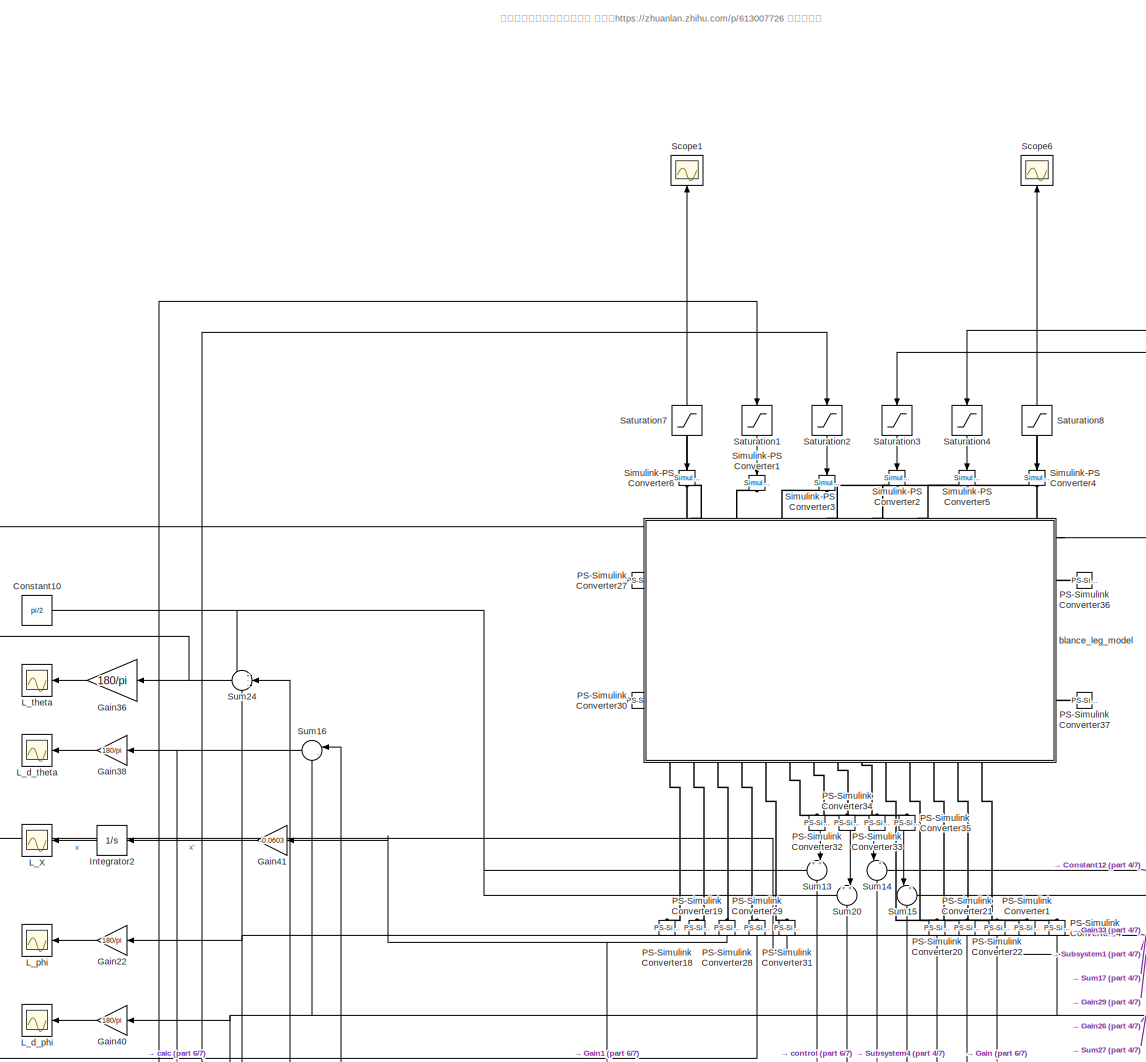
[diagram: root canvas - part 1/7, middle right region]
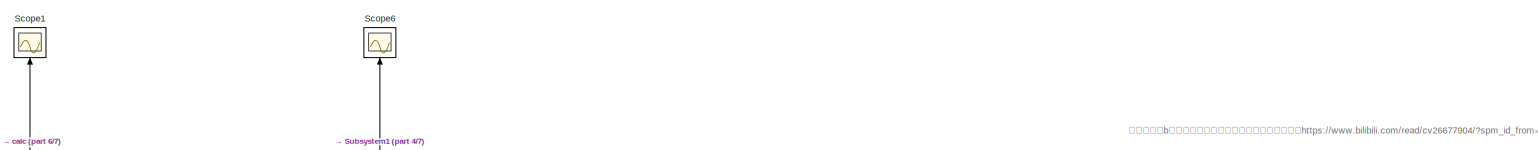
[diagram: root canvas - part 2/7, top right region]
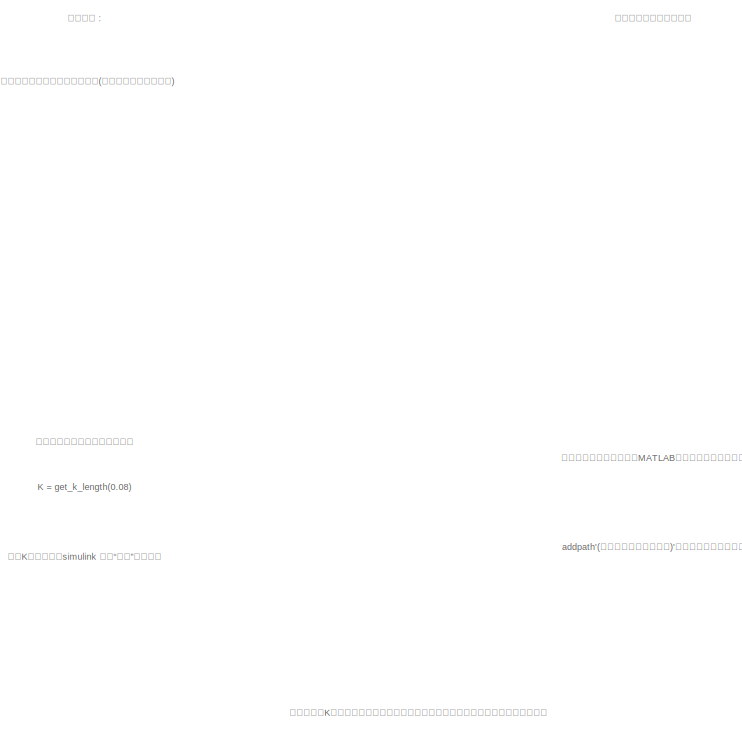
[diagram: root canvas - part 3/7, middle right region]
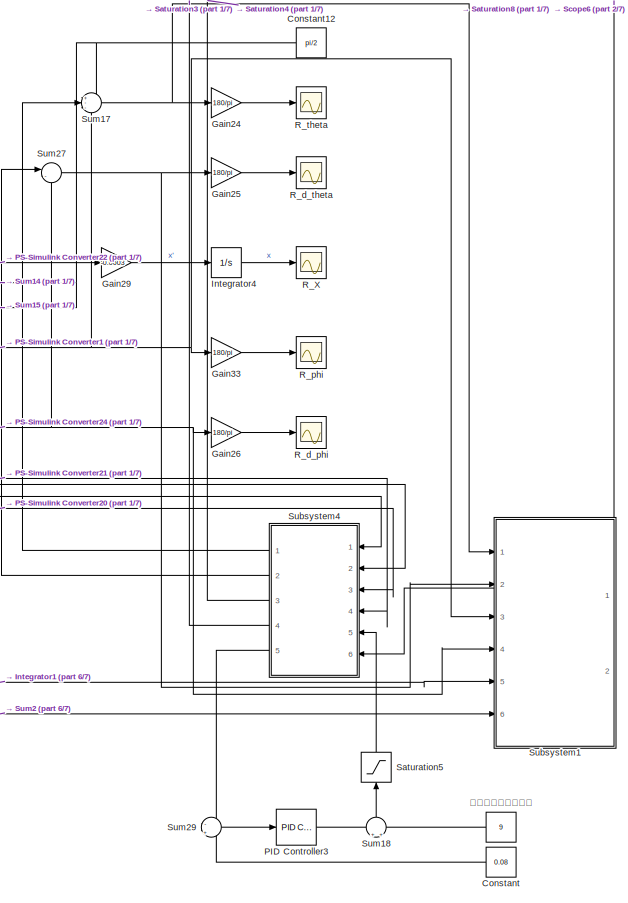
[diagram: root canvas - part 4/7, bottom right region]
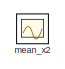
[diagram: root canvas - part 5/7, middle left region]
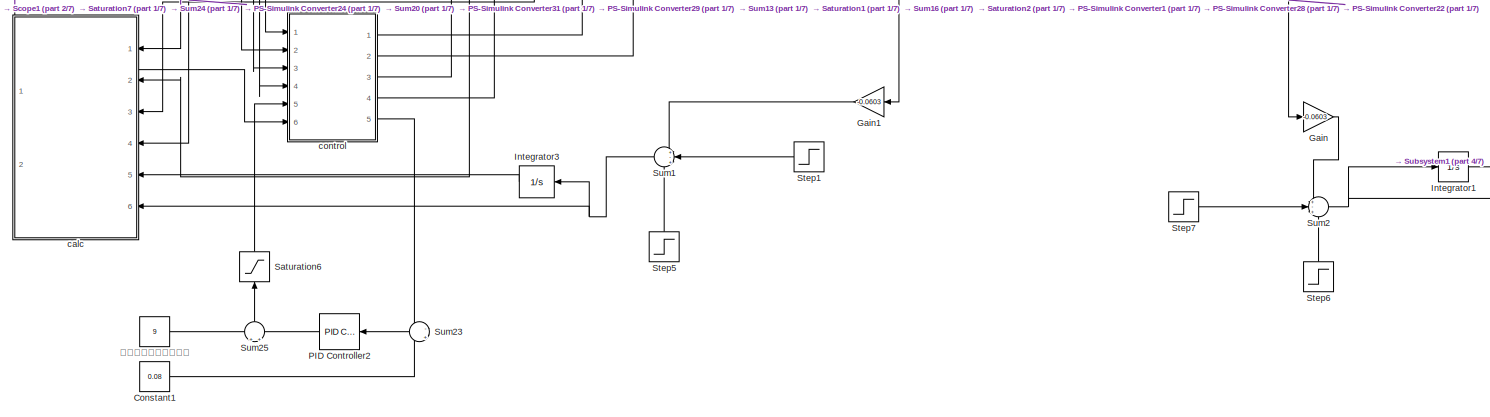
[diagram: root canvas - part 6/7, bottom right region]
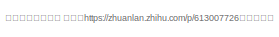
[diagram: root canvas - part 7/7, bottom center region]
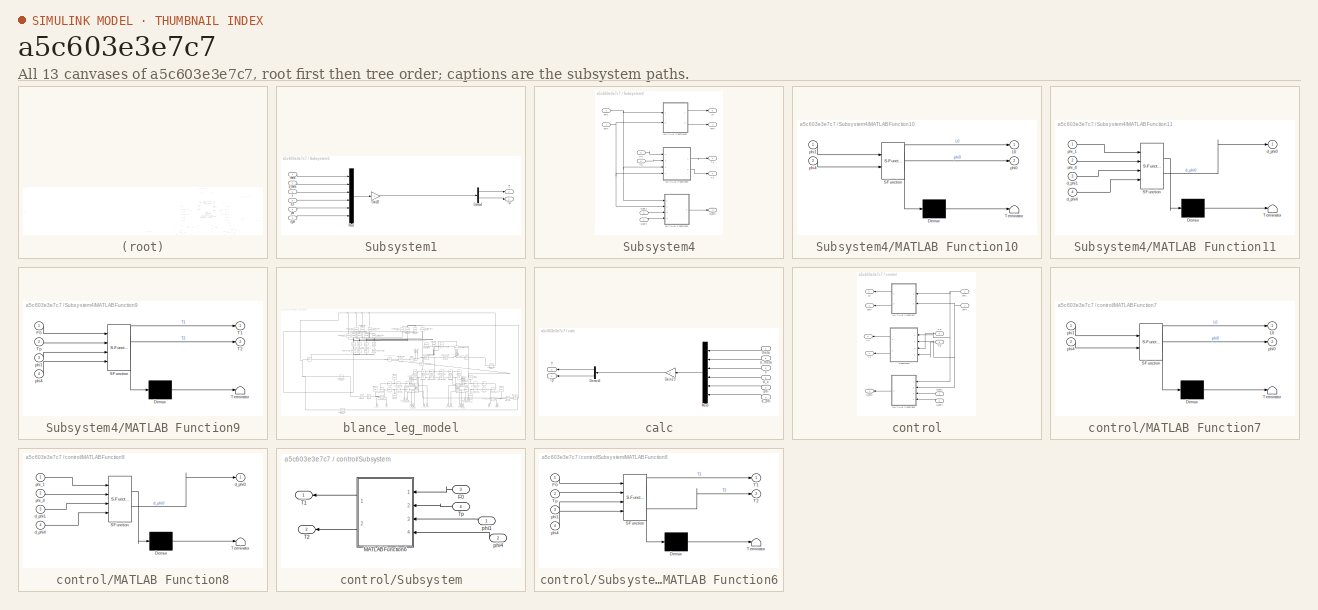
[diagram: thumbnail index - all 13 canvases of the model, root first then tree order]
MODEL slx_a5c603e3e7c7
KIND model
CONFIG AbsTol = auto
CONFIG EnableMultiTasking = off
CONFIG FixedStep = auto
CONFIG MaxStep = auto
CONFIG MinStep = auto
CONFIG RelTol = 1e-3
CONFIG SampleTimeConstraint = Unconstrained
CONFIG SolverName = VariableStepAuto
CONFIG StartTime = 0.0
CONFIG StopTime = 10
BLOCK [Constant] Constant
  NameLocation = top
  Value = 0.08
BLOCK [Constant] Constant1
  Value = 0.08
BLOCK [Constant] Constant10
  Value = pi/2
BLOCK [Constant] Constant12
  NameLocation = top
  Value = pi/2
BLOCK [Gain] Gain
  Gain = -0.0603
BLOCK [Gain] Gain1
  Gain = -0.0603
  NameLocation = top
BLOCK [Gain] Gain22
  Gain = 180/pi
  NameLocation = top
BLOCK [Gain] Gain24
  Gain = 180/pi
  NameLocation = top
BLOCK [Gain] Gain25
  Gain = 180/pi
  NameLocation = top
BLOCK [Gain] Gain26
  Gain = 180/pi
  NameLocation = top
BLOCK [Gain] Gain29
  Gain = -0.0603
  NameLocation = top
BLOCK [Gain] Gain33
  Gain = 180/pi
  NameLocation = top
BLOCK [Gain] Gain36
  Gain = 180/pi
  NameLocation = top
BLOCK [Gain] Gain38
  Gain = 180/pi
  NameLocation = top
BLOCK [Gain] Gain40
  Gain = 180/pi
  NameLocation = top
BLOCK [Gain] Gain41
  Gain = -0.0603
  NameLocation = top
BLOCK [Integrator] Integrator1
  Ports = [1, 1]
BLOCK [Integrator] Integrator2
  NameLocation = top
  Ports = [1, 1]
BLOCK [Integrator] Integrator3
  NameLocation = top
  Ports = [1, 1]
BLOCK [Integrator] Integrator4
  NameLocation = top
  Ports = [1, 1]
BLOCK [Scope] L_X
  Floating = off
  NameLocation = top
  NumInputPorts = 1
  Ports = [1]
  ScopeSpecificationString = Simulink.scopes.TimeScopeBlockCfg('CurrentConfiguration', extmgr.ConfigurationSet(extmgr.Configuration('Core','General UI',true),extmgr.Configuration('Core','Source UI',true),extmgr.Configuration('Sources','WiredSimulink',true,'DataLoggingVariableName','ScopeData7'),extmgr.Configuration('Visuals','Time Domain',true,'SerializedDisplays',{struct('MinYLimReal','-0.7616','MaxYLimReal','6.68295','YLabe...<+1390ch>
BLOCK [Scope] L_d_phi
  Floating = off
  NameLocation = top
  NumInputPorts = 1
  Ports = [1]
  ScopeSpecificationString = Simulink.scopes.TimeScopeBlockCfg('CurrentConfiguration', extmgr.ConfigurationSet(extmgr.Configuration('Core','General UI',true),extmgr.Configuration('Core','Source UI',true),extmgr.Configuration('Sources','WiredSimulink',true,'DataLoggingVariableName','ScopeData9'),extmgr.Configuration('Visuals','Time Domain',true,'SerializedDisplays',{struct('MinYLimReal','-7.35816','MaxYLimReal','0.81757','YLab...<+2064ch>
BLOCK [Scope] L_d_theta
  Floating = off
  NameLocation = top
  NumInputPorts = 1
  Ports = [1]
  ScopeSpecificationString = Simulink.scopes.TimeScopeBlockCfg('CurrentConfiguration', extmgr.ConfigurationSet(extmgr.Configuration('Core','General UI',true),extmgr.Configuration('Core','Source UI',true),extmgr.Configuration('Sources','WiredSimulink',true,'DataLoggingVariableName','ScopeData13'),extmgr.Configuration('Visuals','Time Domain',true,'SerializedDisplays',{struct('MinYLimReal','-21.72062','MaxYLimReal','26.74747','Y...<+1401ch>
BLOCK [Scope] L_phi
  Floating = off
  NameLocation = top
  NumInputPorts = 1
  Ports = [1]
  ScopeSpecificationString = Simulink.scopes.TimeScopeBlockCfg('CurrentConfiguration', extmgr.ConfigurationSet(extmgr.Configuration('Core','General UI',true),extmgr.Configuration('Core','Source UI',true),extmgr.Configuration('Sources','WiredSimulink',true,'DataLoggingVariableName','ScopeData22'),extmgr.Configuration('Visuals','Time Domain',true,'SerializedDisplays',{struct('MinYLimReal','-1.27659','MaxYLimReal','11.48927','YL...<+2071ch>
BLOCK [Scope] L_theta
  Floating = off
  NameLocation = top
  NumInputPorts = 1
  Ports = [1]
  ScopeSpecificationString = Simulink.scopes.TimeScopeBlockCfg('CurrentConfiguration', extmgr.ConfigurationSet(extmgr.Configuration('Core','General UI',true),extmgr.Configuration('Core','Source UI',true),extmgr.Configuration('Sources','WiredSimulink',true,'DataLoggingVariableName','ScopeData25'),extmgr.Configuration('Visuals','Time Domain',true,'SerializedDisplays',{struct('MinYLimReal','-16.80638','MaxYLimReal','15.47425','Y...<+1455ch>
BLOCK [Reference] PID Controller2  REF=pid_lib/PID Controller
  NameLocation = top
  Ports = [1, 1]
  SourceBlock = pid_lib/PID Controller
  SourceProductBaseCode = SL
  SourceType = PID 1dof
BLOCK [Reference] PID Controller3  REF=pid_lib/PID Controller
  NameLocation = top
  Ports = [1, 1]
  SourceBlock = pid_lib/PID Controller
  SourceProductBaseCode = SL
  SourceType = PID 1dof
BLOCK [Reference] PS-Simulink Converter1  REF=nesl_utility/PS-Simulink
Converter
  NameLocation = left
  Ports = [0, 1, 0, 0, 0, 1]
  SourceBlock = nesl_utility/PS-Simulink\nConverter
  SourceProductBaseCode = SS
  SourceType = PS-Simulink\nConverter
BLOCK [Reference] PS-Simulink Converter18  REF=nesl_utility/PS-Simulink
Converter
  NameLocation = left
  Ports = [0, 1, 0, 0, 0, 1]
  SourceBlock = nesl_utility/PS-Simulink\nConverter
  SourceProductBaseCode = SS
  SourceType = PS-Simulink\nConverter
BLOCK [Reference] PS-Simulink Converter19  REF=nesl_utility/PS-Simulink
Converter
  NameLocation = left
  Ports = [0, 1, 0, 0, 0, 1]
  SourceBlock = nesl_utility/PS-Simulink\nConverter
  SourceProductBaseCode = SS
  SourceType = PS-Simulink\nConverter
BLOCK [Reference] PS-Simulink Converter20  REF=nesl_utility/PS-Simulink
Converter
  NameLocation = left
  Ports = [0, 1, 0, 0, 0, 1]
  SourceBlock = nesl_utility/PS-Simulink\nConverter
  SourceProductBaseCode = SS
  SourceType = PS-Simulink\nConverter
BLOCK [Reference] PS-Simulink Converter21  REF=nesl_utility/PS-Simulink
Converter
  NameLocation = left
  Ports = [0, 1, 0, 0, 0, 1]
  SourceBlock = nesl_utility/PS-Simulink\nConverter
  SourceProductBaseCode = SS
  SourceType = PS-Simulink\nConverter
BLOCK [Reference] PS-Simulink Converter22  REF=nesl_utility/PS-Simulink
Converter
  NameLocation = left
  Ports = [0, 1, 0, 0, 0, 1]
  SourceBlock = nesl_utility/PS-Simulink\nConverter
  SourceProductBaseCode = SS
  SourceType = PS-Simulink\nConverter
BLOCK [Reference] PS-Simulink Converter24  REF=nesl_utility/PS-Simulink
Converter
  NameLocation = left
  Ports = [0, 1, 0, 0, 0, 1]
  SourceBlock = nesl_utility/PS-Simulink\nConverter
  SourceProductBaseCode = SS
  SourceType = PS-Simulink\nConverter
BLOCK [Reference] PS-Simulink Converter27  REF=nesl_utility/PS-Simulink
Converter
  NameLocation = top
  Ports = [0, 1, 0, 0, 0, 1]
  SourceBlock = nesl_utility/PS-Simulink\nConverter
  SourceProductBaseCode = SS
  SourceType = PS-Simulink\nConverter
BLOCK [Reference] PS-Simulink Converter28  REF=nesl_utility/PS-Simulink
Converter
  NameLocation = left
  Ports = [0, 1, 0, 0, 0, 1]
  SourceBlock = nesl_utility/PS-Simulink\nConverter
  SourceProductBaseCode = SS
  SourceType = PS-Simulink\nConverter
BLOCK [Reference] PS-Simulink Converter29  REF=nesl_utility/PS-Simulink
Converter
  NameLocation = left
  Ports = [0, 1, 0, 0, 0, 1]
  SourceBlock = nesl_utility/PS-Simulink\nConverter
  SourceProductBaseCode = SS
  SourceType = PS-Simulink\nConverter
BLOCK [Reference] PS-Simulink Converter30  REF=nesl_utility/PS-Simulink
Converter
  NameLocation = top
  Ports = [0, 1, 0, 0, 0, 1]
  SourceBlock = nesl_utility/PS-Simulink\nConverter
  SourceProductBaseCode = SS
  SourceType = PS-Simulink\nConverter
BLOCK [Reference] PS-Simulink Converter31  REF=nesl_utility/PS-Simulink
Converter
  NameLocation = left
  Ports = [0, 1, 0, 0, 0, 1]
  SourceBlock = nesl_utility/PS-Simulink\nConverter
  SourceProductBaseCode = SS
  SourceType = PS-Simulink\nConverter
BLOCK [Reference] PS-Simulink Converter32  REF=nesl_utility/PS-Simulink
Converter
  NameLocation = left
  Ports = [0, 1, 0, 0, 0, 1]
  SourceBlock = nesl_utility/PS-Simulink\nConverter
  SourceProductBaseCode = SS
  SourceType = PS-Simulink\nConverter
BLOCK [Reference] PS-Simulink Converter33  REF=nesl_utility/PS-Simulink
Converter
  NameLocation = left
  Ports = [0, 1, 0, 0, 0, 1]
  SourceBlock = nesl_utility/PS-Simulink\nConverter
  SourceProductBaseCode = SS
  SourceType = PS-Simulink\nConverter
BLOCK [Reference] PS-Simulink Converter34  REF=nesl_utility/PS-Simulink
Converter
  NameLocation = left
  Ports = [0, 1, 0, 0, 0, 1]
  SourceBlock = nesl_utility/PS-Simulink\nConverter
  SourceProductBaseCode = SS
  SourceType = PS-Simulink\nConverter
BLOCK [Reference] PS-Simulink Converter35  REF=nesl_utility/PS-Simulink
Converter
  NameLocation = left
  Ports = [0, 1, 0, 0, 0, 1]
  SourceBlock = nesl_utility/PS-Simulink\nConverter
  SourceProductBaseCode = SS
  SourceType = PS-Simulink\nConverter
BLOCK [Reference] PS-Simulink Converter36  REF=nesl_utility/PS-Simulink
Converter
  Ports = [0, 1, 0, 0, 0, 1]
  SourceBlock = nesl_utility/PS-Simulink\nConverter
  SourceProductBaseCode = SS
  SourceType = PS-Simulink\nConverter
BLOCK [Reference] PS-Simulink Converter37  REF=nesl_utility/PS-Simulink
Converter
  Ports = [0, 1, 0, 0, 0, 1]
  SourceBlock = nesl_utility/PS-Simulink\nConverter
  SourceProductBaseCode = SS
  SourceType = PS-Simulink\nConverter
BLOCK [Scope] R_X
  Floating = off
  NameLocation = top
  NumInputPorts = 1
  Ports = [1]
  ScopeSpecificationString = Simulink.scopes.TimeScopeBlockCfg('CurrentConfiguration', extmgr.ConfigurationSet(extmgr.Configuration('Core','General UI',true),extmgr.Configuration('Core','Source UI',true),extmgr.Configuration('Sources','WiredSimulink',true,'DataLoggingVariableName','ScopeData8'),extmgr.Configuration('Visuals','Time Domain',true,'SerializedDisplays',{struct('MinYLimReal','-0.79846','MaxYLimReal','7.01473','YLab...<+1393ch>
BLOCK [Scope] R_d_phi
  Floating = off
  NameLocation = top
  NumInputPorts = 1
  Ports = [1]
  ScopeSpecificationString = Simulink.scopes.TimeScopeBlockCfg('CurrentConfiguration', extmgr.ConfigurationSet(extmgr.Configuration('Core','General UI',true),extmgr.Configuration('Core','Source UI',true),extmgr.Configuration('Sources','WiredSimulink',true,'DataLoggingVariableName','ScopeData11'),extmgr.Configuration('Visuals','Time Domain',true,'SerializedDisplays',{struct('MinYLimReal','-7.35816','MaxYLimReal','0.81757','YLa...<+2065ch>
BLOCK [Scope] R_d_theta
  Floating = off
  NameLocation = top
  NumInputPorts = 1
  Ports = [1]
  ScopeSpecificationString = Simulink.scopes.TimeScopeBlockCfg('CurrentConfiguration', extmgr.ConfigurationSet(extmgr.Configuration('Core','General UI',true),extmgr.Configuration('Core','Source UI',true),extmgr.Configuration('Sources','WiredSimulink',true,'DataLoggingVariableName','ScopeData14'),extmgr.Configuration('Visuals','Time Domain',true,'SerializedDisplays',{struct('MinYLimReal','-51.86845','MaxYLimReal','175.83384','...<+1404ch>
BLOCK [Scope] R_phi
  Floating = off
  NameLocation = top
  NumInputPorts = 1
  Ports = [1]
  ScopeSpecificationString = Simulink.scopes.TimeScopeBlockCfg('CurrentConfiguration', extmgr.ConfigurationSet(extmgr.Configuration('Core','General UI',true),extmgr.Configuration('Core','Source UI',true),extmgr.Configuration('Sources','WiredSimulink',true,'DataLoggingVariableName','ScopeData17'),extmgr.Configuration('Visuals','Time Domain',true,'SerializedDisplays',{struct('MinYLimReal','-1.27659','MaxYLimReal','11.48927','YL...<+2070ch>
BLOCK [Scope] R_theta
  Floating = off
  NameLocation = top
  NumInputPorts = 1
  Ports = [1]
  ScopeSpecificationString = Simulink.scopes.TimeScopeBlockCfg('CurrentConfiguration', extmgr.ConfigurationSet(extmgr.Configuration('Core','General UI',true),extmgr.Configuration('Core','Source UI',true),extmgr.Configuration('Sources','WiredSimulink',true,'DataLoggingVariableName','ScopeData26'),extmgr.Configuration('Visuals','Time Domain',true,'SerializedDisplays',{struct('MinYLimReal','-20.84145','MaxYLimReal','19.50938','Y...<+1404ch>
BLOCK [Saturate] Saturation1
  LowerLimit = -100
  NameLocation = left
  UpperLimit = 100
BLOCK [Saturate] Saturation2
  LowerLimit = -100
  NameLocation = left
  UpperLimit = 100
BLOCK [Saturate] Saturation3
  LowerLimit = -100
  NameLocation = left
  UpperLimit = 100
BLOCK [Saturate] Saturation4
  LowerLimit = -100
  NameLocation = left
  UpperLimit = 100
BLOCK [Saturate] Saturation5
  LowerLimit = -300
  NameLocation = right
  UpperLimit = 300
BLOCK [Saturate] Saturation6
  LowerLimit = -300
  NameLocation = right
  UpperLimit = 300
BLOCK [Saturate] Saturation7
  LowerLimit = -9
  NameLocation = left
  UpperLimit = 9
BLOCK [Saturate] Saturation8
  LowerLimit = -9
  NameLocation = left
  UpperLimit = 9
BLOCK [Scope] Scope1
  Floating = off
  NameLocation = right
  NumInputPorts = 1
  Ports = [1]
  ScopeSpecificationString = Simulink.scopes.TimeScopeBlockCfg('CurrentConfiguration', extmgr.ConfigurationSet(extmgr.Configuration('Core','General UI',true),extmgr.Configuration('Core','Source UI',true),extmgr.Configuration('Sources','WiredSimulink',true,'DataLoggingVariableName','ScopeData1'),extmgr.Configuration('Visuals','Time Domain',true,'SerializedDisplays',{struct('MinYLimReal','-9.10613','MaxYLimReal','7.92497','YLab...<+1473ch>
BLOCK [Scope] Scope6
  Floating = off
  NameLocation = right
  NumInputPorts = 1
  Ports = [1]
  ScopeSpecificationString = Simulink.scopes.TimeScopeBlockCfg('CurrentConfiguration', extmgr.ConfigurationSet(extmgr.Configuration('Core','General UI',true),extmgr.Configuration('Core','Source UI',true),extmgr.Configuration('Sources','WiredSimulink',true,'DataLoggingVariableName','ScopeData6'),extmgr.Configuration('Visuals','Time Domain',true,'SerializedDisplays',{struct('MinYLimReal','-2.43035','MaxYLimReal','2.35376','YLab...<+1419ch>
BLOCK [Reference] Simulink-PS Converter1  REF=nesl_utility/Simulink-PS
Converter
  NameLocation = left
  Ports = [1, 0, 0, 0, 0, 0, 1]
  SourceBlock = nesl_utility/Simulink-PS\nConverter
  SourceProductBaseCode = SS
  SourceType = Simulink-PS\nConverter
BLOCK [Reference] Simulink-PS Converter2  REF=nesl_utility/Simulink-PS
Converter
  NameLocation = left
  Ports = [1, 0, 0, 0, 0, 0, 1]
  SourceBlock = nesl_utility/Simulink-PS\nConverter
  SourceProductBaseCode = SS
  SourceType = Simulink-PS\nConverter
BLOCK [Reference] Simulink-PS Converter3  REF=nesl_utility/Simulink-PS
Converter
  NameLocation = left
  Ports = [1, 0, 0, 0, 0, 0, 1]
  SourceBlock = nesl_utility/Simulink-PS\nConverter
  SourceProductBaseCode = SS
  SourceType = Simulink-PS\nConverter
BLOCK [Reference] Simulink-PS Converter4  REF=nesl_utility/Simulink-PS
Converter
  NameLocation = left
  Ports = [1, 0, 0, 0, 0, 0, 1]
  SourceBlock = nesl_utility/Simulink-PS\nConverter
  SourceProductBaseCode = SS
  SourceType = Simulink-PS\nConverter
BLOCK [Reference] Simulink-PS Converter5  REF=nesl_utility/Simulink-PS
Converter
  NameLocation = left
  Ports = [1, 0, 0, 0, 0, 0, 1]
  SourceBlock = nesl_utility/Simulink-PS\nConverter
  SourceProductBaseCode = SS
  SourceType = Simulink-PS\nConverter
BLOCK [Reference] Simulink-PS Converter6  REF=nesl_utility/Simulink-PS
Converter
  NameLocation = left
  Ports = [1, 0, 0, 0, 0, 0, 1]
  SourceBlock = nesl_utility/Simulink-PS\nConverter
  SourceProductBaseCode = SS
  SourceType = Simulink-PS\nConverter
BLOCK [Step] Step1
  After = 0.5
  NameLocation = top
  SampleTime = 0
  Time = 2
BLOCK [Step] Step5
  After = 0.5
  NameLocation = right
  SampleTime = 0
  Time = 5
BLOCK [Step] Step6
  After = 0.5
  NameLocation = right
  SampleTime = 0
  Time = 5
BLOCK [Step] Step7
  After = 0.5
  SampleTime = 0
  Time = 2
BLOCK [SubSystem] Subsystem1
  PortSchema = {"entries":[{"content":{"sides":[{"content":{"connectorIds":["In1","In2","In3","In4","In5","In6"]},"type":"ConnectorPlacement.EquallySpacedRectSide","uuid":"055cb80c-cd03-4a8d-aef8-6b3df8c72d3f"},{"content":{"connectorIds":[],"side":"RIGHT"},"type":"ConnectorPlacement.EquallySpacedRectSide","uuid":"5756fad1-d70f-4a11-a5af-d2f67bfb0d7e"},{"content":{"connectorIds":["Out1","Out2"],"side":"TOP"},"typ...<+277ch>
  Ports = [6, 2]
  RequestExecContextInheritance = off
BLOCK [Demux] Subsystem1/Demux4
  NameLocation = top
  Outputs = 2
  Ports = [1, 2]
BLOCK [Gain] Subsystem1/Gain23
  Gain = K
  Multiplication = Matrix(K*u) (u vector)
BLOCK [Mux] Subsystem1/Mux3
  DisplayOption = bar
  Inputs = 6
  NameLocation = top
  Ports = [6, 1]
BLOCK [Outport] Subsystem1/T
  NameLocation = top
  Port = 2
BLOCK [Outport] Subsystem1/Tp
BLOCK [Inport] Subsystem1/d_phi
  NameLocation = left
  Port = 4
BLOCK [Inport] Subsystem1/d_theta
  NameLocation = left
  Port = 2
BLOCK [Inport] Subsystem1/d_x
  NameLocation = left
  Port = 6
BLOCK [Inport] Subsystem1/phi
  NameLocation = left
  Port = 3
BLOCK [Inport] Subsystem1/theta
  NameLocation = left
BLOCK [Inport] Subsystem1/x
  NameLocation = left
  Port = 5
BLOCK [SubSystem] Subsystem4
  PortSchema = {"entries":[{"content":{"sides":[{"content":{"connectorIds":["In1","In2","In3","In4","In5"]},"type":"ConnectorPlacement.EquallySpacedRectSide","uuid":"40de31e0-cc19-460f-99e9-affbb47f7204"},{"content":{"connectorIds":["Out1","Out2","Out3","Out4","Out5"],"side":"RIGHT"},"type":"ConnectorPlacement.EquallySpacedRectSide","uuid":"e61df4ab-633d-456a-aa2d-223df880274d"},{"content":{"connectorIds":["In6"...<+297ch>
  Ports = [6, 5]
  RequestExecContextInheritance = off
BLOCK [Inport] Subsystem4/F0
  Port = 5
BLOCK [Outport] Subsystem4/L0
  Port = 5
BLOCK [SubSystem] Subsystem4/MATLAB Function10
  ErrorFcn = Stateflow.Translate.translate
  NameLocation = top
  PermitHierarchicalResolution = ExplicitOnly
  Ports = [2, 2]
  RequestExecContextInheritance = off
  SFBlockType = MATLAB Function
  TreatAsAtomicUnit = on
BLOCK [Demux] Subsystem4/MATLAB Function10/ Demux 
  Outputs = 1
  Ports = [1, 1]
BLOCK [S-Function] Subsystem4/MATLAB Function10/ SFunction 
  EnableBusSupport = on
  FunctionName = sf_sfun
  PortCounts = [2 3]
  Ports = [2, 3]
  SFcnIsStateOwnerBlock = off
  SFunctionDeploymentMode = off
  Tag = Stateflow S-Function 7
BLOCK [Terminator] Subsystem4/MATLAB Function10/ Terminator 
BLOCK [Outport] Subsystem4/MATLAB Function10/L0
BLOCK [Outport] Subsystem4/MATLAB Function10/phi0
  Port = 2
BLOCK [Inport] Subsystem4/MATLAB Function10/phi1
BLOCK [Inport] Subsystem4/MATLAB Function10/phi4
  Port = 2
BLOCK [SubSystem] Subsystem4/MATLAB Function11
  ErrorFcn = Stateflow.Translate.translate
  NameLocation = top
  PermitHierarchicalResolution = ExplicitOnly
  Ports = [4, 1]
  RequestExecContextInheritance = off
  SFBlockType = MATLAB Function
  TreatAsAtomicUnit = on
BLOCK [Demux] Subsystem4/MATLAB Function11/ Demux 
  Outputs = 1
  Ports = [1, 1]
BLOCK [S-Function] Subsystem4/MATLAB Function11/ SFunction 
  EnableBusSupport = on
  FunctionName = sf_sfun
  PortCounts = [4 2]
  Ports = [4, 2]
  SFcnIsStateOwnerBlock = off
  SFunctionDeploymentMode = off
  Tag = Stateflow S-Function 8
BLOCK [Terminator] Subsystem4/MATLAB Function11/ Terminator 
BLOCK [Outport] Subsystem4/MATLAB Function11/d_phi0
BLOCK [Inport] Subsystem4/MATLAB Function11/d_phi1
  Port = 3
BLOCK [Inport] Subsystem4/MATLAB Function11/d_phi4
  Port = 4
BLOCK [Inport] Subsystem4/MATLAB Function11/phi_1
BLOCK [Inport] Subsystem4/MATLAB Function11/phi_4
  Port = 2
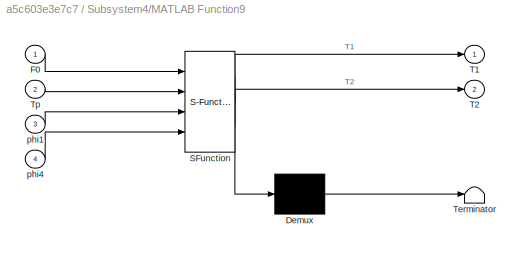
BLOCK [SubSystem] Subsystem4/MATLAB Function9
  ErrorFcn = Stateflow.Translate.translate
  NameLocation = top
  PermitHierarchicalResolution = ExplicitOnly
  Ports = [4, 2]
  RequestExecContextInheritance = off
  SFBlockType = MATLAB Function
  TreatAsAtomicUnit = on
BLOCK [Demux] Subsystem4/MATLAB Function9/ Demux 
  Outputs = 1
  Ports = [1, 1]
BLOCK [S-Function] Subsystem4/MATLAB Function9/ SFunction 
  EnableBusSupport = on
  FunctionName = sf_sfun
  PortCounts = [4 3]
  Ports = [4, 3]
  SFcnIsStateOwnerBlock = off
  SFunctionDeploymentMode = off
  Tag = Stateflow S-Function 12
BLOCK [Terminator] Subsystem4/MATLAB Function9/ Terminator 
BLOCK [Inport] Subsystem4/MATLAB Function9/F0
BLOCK [Outport] Subsystem4/MATLAB Function9/T1
BLOCK [Outport] Subsystem4/MATLAB Function9/T2
  Port = 2
BLOCK [Inport] Subsystem4/MATLAB Function9/Tp
  Port = 2
BLOCK [Inport] Subsystem4/MATLAB Function9/phi1
  Port = 3
BLOCK [Inport] Subsystem4/MATLAB Function9/phi4
  Port = 4
BLOCK [Outport] Subsystem4/T1
  NameLocation = top
  Port = 3
BLOCK [Outport] Subsystem4/T2
  NameLocation = top
  Port = 4
BLOCK [Inport] Subsystem4/Tp
  Port = 6
BLOCK [Outport] Subsystem4/d_phi0
  Port = 2
BLOCK [Inport] Subsystem4/d_phi1
  NameLocation = top
  Port = 3
BLOCK [Inport] Subsystem4/d_phi4
  Port = 4
BLOCK [Outport] Subsystem4/phi0
BLOCK [Inport] Subsystem4/phi1
BLOCK [Inport] Subsystem4/phi4
  Port = 2
BLOCK [Sum] Sum1
  Inputs = +-+
  NameLocation = top
  Ports = [3, 1]
BLOCK [Sum] Sum13
  Inputs = ++|
  NameLocation = left
  Ports = [2, 1]
BLOCK [Sum] Sum14
  Inputs = |++
  NameLocation = left
  Ports = [2, 1]
BLOCK [Sum] Sum15
  Inputs = |++
  NameLocation = left
  Ports = [2, 1]
BLOCK [Sum] Sum16
  Inputs = |--
  NameLocation = top
  Ports = [2, 1]
BLOCK [Sum] Sum17
  Inputs = +--
  NameLocation = top
  Ports = [3, 1]
BLOCK [Sum] Sum18
  Inputs = +|+
  NameLocation = right
  Ports = [2, 1]
BLOCK [Sum] Sum2
  Inputs = +-+
  Ports = [3, 1]
BLOCK [Sum] Sum20
  Inputs = ++|
  NameLocation = left
  Ports = [2, 1]
BLOCK [Sum] Sum23
  Inputs = -|+
  NameLocation = top
  Ports = [2, 1]
BLOCK [Sum] Sum24
  Inputs = +--
  NameLocation = top
  Ports = [3, 1]
BLOCK [Sum] Sum25
  Inputs = +|+
  NameLocation = right
  Ports = [2, 1]
BLOCK [Sum] Sum27
  Inputs = |--
  NameLocation = top
  Ports = [2, 1]
BLOCK [Sum] Sum29
  Inputs = -|+
  NameLocation = top
  Ports = [2, 1]
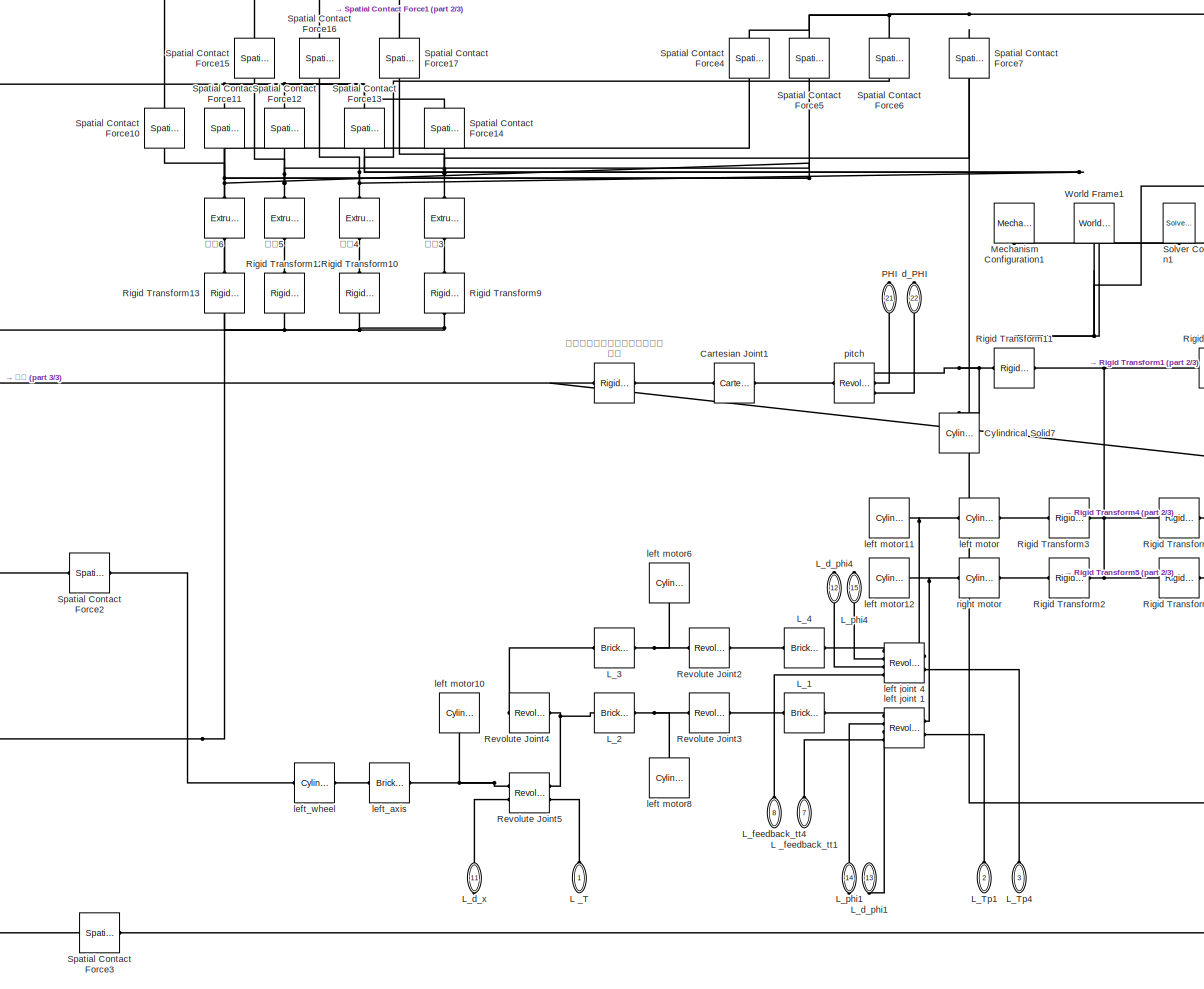
[diagram: blance_leg_model - part 1/3, center side, full height]
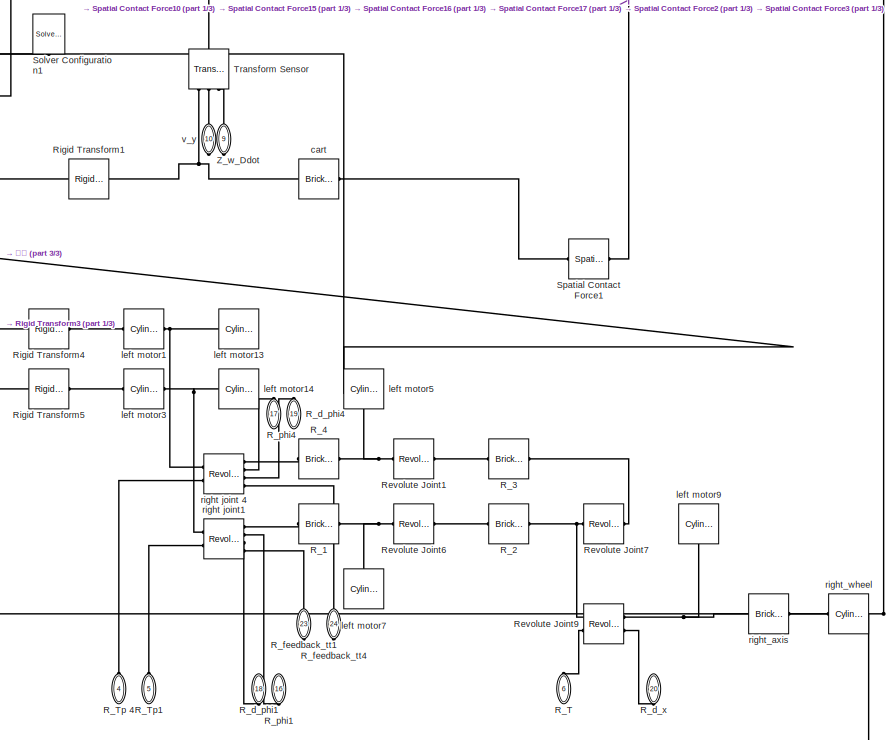
[diagram: blance_leg_model - part 2/3, middle right region]
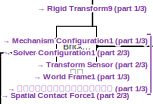
[diagram: blance_leg_model - part 3/3, middle left region]
BLOCK [SubSystem] blance_leg_model
  NameLocation = right
  PortSchema = {"entries":[{"content":{"sides":[{"content":{"connectorIds":["LConn1","LConn2","LConn3","LConn4","LConn5","LConn6"]},"type":"ConnectorPlacement.EquallySpacedRectSide","uuid":"df2d0b15-ec70-4430-8d90-67c6d88950b4"},{"content":{"connectorIds":["RConn1","RConn2","RConn3","RConn4","RConn5","RConn6","RConn7","RConn8","RConn9","RConn10","RConn11","RConn12","RConn13","RConn14"],"side":"RIGHT"},"type":"Co...<+592ch>
  Ports = [0, 0, 0, 0, 0, 8, 16]
  RequestExecContextInheritance = off
BLOCK [Reference] blance_leg_model/Cartesian Joint1  REF=sm_lib/Joints/Cartesian
Joint
  Ports = [0, 0, 0, 0, 0, 1, 1]
  SourceBlock = sm_lib/Joints/Cartesian\nJoint
  SourceProductBaseCode = MS
  SourceType = Cartesian\nJoint
BLOCK [Reference] blance_leg_model/Cylindrical Solid7  REF=sm_lib/Body Elements/Cylindrical Solid
  NameLocation = right
  Ports = [0, 0, 0, 0, 0, 0, 1]
  SourceBlock = sm_lib/Body Elements/Cylindrical Solid
  SourceProductBaseCode = MS
  SourceType = Cylindrical Solid
BLOCK [PMIOPort] blance_leg_model/L _T
  NameLocation = right
  Side = Left
BLOCK [PMIOPort] blance_leg_model/L _feedback_tt1  
  NameLocation = right
  Port = 7
  Side = Left
BLOCK [Reference] blance_leg_model/L_1  REF=sm_lib/Body Elements/Brick Solid
  NameLocation = top
  Ports = [0, 0, 0, 0, 0, 1, 1]
  SourceBlock = sm_lib/Body Elements/Brick Solid
  SourceProductBaseCode = MS
  SourceType = Brick Solid
BLOCK [Reference] blance_leg_model/L_2  REF=sm_lib/Body Elements/Brick Solid
  Ports = [0, 0, 0, 0, 0, 1, 1]
  SourceBlock = sm_lib/Body Elements/Brick Solid
  SourceProductBaseCode = MS
  SourceType = Brick Solid
BLOCK [Reference] blance_leg_model/L_3  REF=sm_lib/Body Elements/Brick Solid
  NameLocation = top
  Ports = [0, 0, 0, 0, 0, 1, 1]
  SourceBlock = sm_lib/Body Elements/Brick Solid
  SourceProductBaseCode = MS
  SourceType = Brick Solid
BLOCK [Reference] blance_leg_model/L_4  REF=sm_lib/Body Elements/Brick Solid
  NameLocation = top
  Ports = [0, 0, 0, 0, 0, 1, 1]
  SourceBlock = sm_lib/Body Elements/Brick Solid
  SourceProductBaseCode = MS
  SourceType = Brick Solid
BLOCK [PMIOPort] blance_leg_model/L_Tp1 
  NameLocation = left
  Port = 2
  Side = Left
BLOCK [PMIOPort] blance_leg_model/L_Tp4  
  NameLocation = right
  Port = 3
  Side = Left
BLOCK [PMIOPort] blance_leg_model/L_d_phi1
  NameLocation = right
  Port = 13
  Side = Right
BLOCK [PMIOPort] blance_leg_model/L_d_phi4
  NameLocation = left
  Port = 12
  Side = Right
BLOCK [PMIOPort] blance_leg_model/L_d_x 
  NameLocation = left
  Port = 11
  Side = Right
BLOCK [PMIOPort] blance_leg_model/L_feedback_tt4
  NameLocation = left
  Port = 8
  Side = Left
BLOCK [PMIOPort] blance_leg_model/L_phi1
  NameLocation = left
  Port = 14
  Side = Right
BLOCK [PMIOPort] blance_leg_model/L_phi4
  NameLocation = right
  Port = 15
  Side = Right
BLOCK [Reference] blance_leg_model/Mechanism Configuration1  REF=sm_lib/Utilities/Mechanism
Configuration
  NameLocation = left
  Ports = [0, 0, 0, 0, 0, 0, 1]
  SourceBlock = sm_lib/Utilities/Mechanism\nConfiguration
  SourceProductBaseCode = MS
  SourceType = Mechanism\nConfiguration
BLOCK [PMIOPort] blance_leg_model/PHI
  NameLocation = left
  Port = 21
  Side = Right
BLOCK [Reference] blance_leg_model/R_1  REF=sm_lib/Body Elements/Brick Solid
  NameLocation = top
  Ports = [0, 0, 0, 0, 0, 1, 1]
  SourceBlock = sm_lib/Body Elements/Brick Solid
  SourceProductBaseCode = MS
  SourceType = Brick Solid
BLOCK [Reference] blance_leg_model/R_2  REF=sm_lib/Body Elements/Brick Solid
  NameLocation = top
  Ports = [0, 0, 0, 0, 0, 1, 1]
  SourceBlock = sm_lib/Body Elements/Brick Solid
  SourceProductBaseCode = MS
  SourceType = Brick Solid
BLOCK [Reference] blance_leg_model/R_3  REF=sm_lib/Body Elements/Brick Solid
  NameLocation = top
  Ports = [0, 0, 0, 0, 0, 1, 1]
  SourceBlock = sm_lib/Body Elements/Brick Solid
  SourceProductBaseCode = MS
  SourceType = Brick Solid
BLOCK [Reference] blance_leg_model/R_4  REF=sm_lib/Body Elements/Brick Solid
  NameLocation = top
  Ports = [0, 0, 0, 0, 0, 1, 1]
  SourceBlock = sm_lib/Body Elements/Brick Solid
  SourceProductBaseCode = MS
  SourceType = Brick Solid
BLOCK [PMIOPort] blance_leg_model/R_T
  NameLocation = right
  Port = 6
  Side = Left
BLOCK [PMIOPort] blance_leg_model/R_Tp 4
  NameLocation = left
  Port = 4
  Side = Left
BLOCK [PMIOPort] blance_leg_model/R_Tp1
  NameLocation = right
  Port = 5
  Side = Left
BLOCK [PMIOPort] blance_leg_model/R_d_phi1
  NameLocation = left
  Port = 18
  Side = Right
BLOCK [PMIOPort] blance_leg_model/R_d_phi4
  NameLocation = right
  Port = 19
  Side = Right
BLOCK [PMIOPort] blance_leg_model/R_d_x
  NameLocation = right
  Port = 20
  Side = Right
BLOCK [PMIOPort] blance_leg_model/R_feedback_tt1
  NameLocation = left
  Port = 23
  Side = Right
BLOCK [PMIOPort] blance_leg_model/R_feedback_tt4
  NameLocation = right
  Port = 24
  Side = Right
BLOCK [PMIOPort] blance_leg_model/R_phi1
  NameLocation = right
  Port = 16
  Side = Right
BLOCK [PMIOPort] blance_leg_model/R_phi4
  NameLocation = left
  Port = 17
  Side = Right
BLOCK [Reference] blance_leg_model/Revolute Joint1  REF=sm_lib/Joints/Revolute Joint
  Ports = [0, 0, 0, 0, 0, 1, 1]
  SourceBlock = sm_lib/Joints/Revolute Joint
  SourceProductBaseCode = MS
  SourceType = Revolute Joint
BLOCK [Reference] blance_leg_model/Revolute Joint2  REF=sm_lib/Joints/Revolute Joint
  NameLocation = top
  Ports = [0, 0, 0, 0, 0, 1, 1]
  SourceBlock = sm_lib/Joints/Revolute Joint
  SourceProductBaseCode = MS
  SourceType = Revolute Joint
BLOCK [Reference] blance_leg_model/Revolute Joint3  REF=sm_lib/Joints/Revolute Joint
  NameLocation = top
  Ports = [0, 0, 0, 0, 0, 1, 1]
  SourceBlock = sm_lib/Joints/Revolute Joint
  SourceProductBaseCode = MS
  SourceType = Revolute Joint
BLOCK [Reference] blance_leg_model/Revolute Joint4  REF=sm_lib/Joints/Revolute Joint
  Ports = [0, 0, 0, 0, 0, 1, 1]
  SourceBlock = sm_lib/Joints/Revolute Joint
  SourceProductBaseCode = MS
  SourceType = Revolute Joint
BLOCK [Reference] blance_leg_model/Revolute Joint5  REF=sm_lib/Joints/Revolute Joint
  NameLocation = top
  Ports = [0, 0, 0, 0, 0, 2, 2]
  SourceBlock = sm_lib/Joints/Revolute Joint
  SourceProductBaseCode = MS
  SourceType = Revolute Joint
BLOCK [Reference] blance_leg_model/Revolute Joint6  REF=sm_lib/Joints/Revolute Joint
  Ports = [0, 0, 0, 0, 0, 1, 1]
  SourceBlock = sm_lib/Joints/Revolute Joint
  SourceProductBaseCode = MS
  SourceType = Revolute Joint
BLOCK [Reference] blance_leg_model/Revolute Joint7  REF=sm_lib/Joints/Revolute Joint
  NameLocation = top
  Ports = [0, 0, 0, 0, 0, 1, 1]
  SourceBlock = sm_lib/Joints/Revolute Joint
  SourceProductBaseCode = MS
  SourceType = Revolute Joint
BLOCK [Reference] blance_leg_model/Revolute Joint9  REF=sm_lib/Joints/Revolute Joint
  Ports = [0, 0, 0, 0, 0, 2, 2]
  SourceBlock = sm_lib/Joints/Revolute Joint
  SourceProductBaseCode = MS
  SourceType = Revolute Joint
BLOCK [Reference] blance_leg_model/Rigid Transform1  REF=sm_lib/Frames and
Transforms/Rigid
Transform
  Ports = [0, 0, 0, 0, 0, 1, 1]
  SourceBlock = sm_lib/Frames and\nTransforms/Rigid\nTransform
  SourceProductBaseCode = MS
  SourceType = Rigid\nTransform
BLOCK [Reference] blance_leg_model/Rigid Transform10  REF=sm_lib/Frames and
Transforms/Rigid
Transform
  NameLocation = right
  Ports = [0, 0, 0, 0, 0, 1, 1]
  SourceBlock = sm_lib/Frames and\nTransforms/Rigid\nTransform
  SourceProductBaseCode = MS
  SourceType = Rigid\nTransform
BLOCK [Reference] blance_leg_model/Rigid Transform11  REF=sm_lib/Frames and
Transforms/Rigid
Transform
  NameLocation = top
  Ports = [0, 0, 0, 0, 0, 1, 1]
  SourceBlock = sm_lib/Frames and\nTransforms/Rigid\nTransform
  SourceProductBaseCode = MS
  SourceType = Rigid\nTransform
BLOCK [Reference] blance_leg_model/Rigid Transform12  REF=sm_lib/Frames and
Transforms/Rigid
Transform
  NameLocation = right
  Ports = [0, 0, 0, 0, 0, 1, 1]
  SourceBlock = sm_lib/Frames and\nTransforms/Rigid\nTransform
  SourceProductBaseCode = MS
  SourceType = Rigid\nTransform
BLOCK [Reference] blance_leg_model/Rigid Transform13  REF=sm_lib/Frames and
Transforms/Rigid
Transform
  NameLocation = right
  Ports = [0, 0, 0, 0, 0, 1, 1]
  SourceBlock = sm_lib/Frames and\nTransforms/Rigid\nTransform
  SourceProductBaseCode = MS
  SourceType = Rigid\nTransform
BLOCK [Reference] blance_leg_model/Rigid Transform2  REF=sm_lib/Frames and
Transforms/Rigid
Transform
  NameLocation = top
  Ports = [0, 0, 0, 0, 0, 1, 1]
  SourceBlock = sm_lib/Frames and\nTransforms/Rigid\nTransform
  SourceProductBaseCode = MS
  SourceType = Rigid\nTransform
BLOCK [Reference] blance_leg_model/Rigid Transform3  REF=sm_lib/Frames and
Transforms/Rigid
Transform
  NameLocation = top
  Ports = [0, 0, 0, 0, 0, 1, 1]
  SourceBlock = sm_lib/Frames and\nTransforms/Rigid\nTransform
  SourceProductBaseCode = MS
  SourceType = Rigid\nTransform
BLOCK [Reference] blance_leg_model/Rigid Transform4  REF=sm_lib/Frames and
Transforms/Rigid
Transform
  Ports = [0, 0, 0, 0, 0, 1, 1]
  SourceBlock = sm_lib/Frames and\nTransforms/Rigid\nTransform
  SourceProductBaseCode = MS
  SourceType = Rigid\nTransform
BLOCK [Reference] blance_leg_model/Rigid Transform5  REF=sm_lib/Frames and
Transforms/Rigid
Transform
  Ports = [0, 0, 0, 0, 0, 1, 1]
  SourceBlock = sm_lib/Frames and\nTransforms/Rigid\nTransform
  SourceProductBaseCode = MS
  SourceType = Rigid\nTransform
BLOCK [Reference] blance_leg_model/Rigid Transform9  REF=sm_lib/Frames and
Transforms/Rigid
Transform
  NameLocation = right
  Ports = [0, 0, 0, 0, 0, 1, 1]
  SourceBlock = sm_lib/Frames and\nTransforms/Rigid\nTransform
  SourceProductBaseCode = MS
  SourceType = Rigid\nTransform
BLOCK [Reference] blance_leg_model/Solver Configuration1  REF=nesl_utility/Solver
Configuration
  NameLocation = left
  Ports = [0, 0, 0, 0, 0, 0, 1]
  SourceBlock = nesl_utility/Solver\nConfiguration
  SourceProductBaseCode = SS
  SourceType = Solver\nConfiguration
BLOCK [Reference] blance_leg_model/Spatial Contact Force1  REF=sm_lib/Forces and
Torques/Spatial
Contact Force
  NameLocation = top
  Ports = [0, 0, 0, 0, 0, 1, 1]
  SourceBlock = sm_lib/Forces and\nTorques/Spatial\nContact Force
  SourceProductBaseCode = MS
  SourceType = Spatial\nContact Force
BLOCK [Reference] blance_leg_model/Spatial Contact Force10  REF=sm_lib/Forces and
Torques/Spatial
Contact Force
  NameLocation = right
  Ports = [0, 0, 0, 0, 0, 1, 1]
  SourceBlock = sm_lib/Forces and\nTorques/Spatial\nContact Force
  SourceProductBaseCode = MS
  SourceType = Spatial\nContact Force
BLOCK [Reference] blance_leg_model/Spatial Contact Force11  REF=sm_lib/Forces and
Torques/Spatial
Contact Force
  NameLocation = right
  Ports = [0, 0, 0, 0, 0, 1, 1]
  SourceBlock = sm_lib/Forces and\nTorques/Spatial\nContact Force
  SourceProductBaseCode = MS
  SourceType = Spatial\nContact Force
BLOCK [Reference] blance_leg_model/Spatial Contact Force12  REF=sm_lib/Forces and
Torques/Spatial
Contact Force
  NameLocation = right
  Ports = [0, 0, 0, 0, 0, 1, 1]
  SourceBlock = sm_lib/Forces and\nTorques/Spatial\nContact Force
  SourceProductBaseCode = MS
  SourceType = Spatial\nContact Force
BLOCK [Reference] blance_leg_model/Spatial Contact Force13  REF=sm_lib/Forces and
Torques/Spatial
Contact Force
  NameLocation = right
  Ports = [0, 0, 0, 0, 0, 1, 1]
  SourceBlock = sm_lib/Forces and\nTorques/Spatial\nContact Force
  SourceProductBaseCode = MS
  SourceType = Spatial\nContact Force
BLOCK [Reference] blance_leg_model/Spatial Contact Force14  REF=sm_lib/Forces and
Torques/Spatial
Contact Force
  NameLocation = right
  Ports = [0, 0, 0, 0, 0, 1, 1]
  SourceBlock = sm_lib/Forces and\nTorques/Spatial\nContact Force
  SourceProductBaseCode = MS
  SourceType = Spatial\nContact Force
BLOCK [Reference] blance_leg_model/Spatial Contact Force15  REF=sm_lib/Forces and
Torques/Spatial
Contact Force
  NameLocation = right
  Ports = [0, 0, 0, 0, 0, 1, 1]
  SourceBlock = sm_lib/Forces and\nTorques/Spatial\nContact Force
  SourceProductBaseCode = MS
  SourceType = Spatial\nContact Force
BLOCK [Reference] blance_leg_model/Spatial Contact Force16  REF=sm_lib/Forces and
Torques/Spatial
Contact Force
  NameLocation = right
  Ports = [0, 0, 0, 0, 0, 1, 1]
  SourceBlock = sm_lib/Forces and\nTorques/Spatial\nContact Force
  SourceProductBaseCode = MS
  SourceType = Spatial\nContact Force
BLOCK [Reference] blance_leg_model/Spatial Contact Force17  REF=sm_lib/Forces and
Torques/Spatial
Contact Force
  NameLocation = right
  Ports = [0, 0, 0, 0, 0, 1, 1]
  SourceBlock = sm_lib/Forces and\nTorques/Spatial\nContact Force
  SourceProductBaseCode = MS
  SourceType = Spatial\nContact Force
BLOCK [Reference] blance_leg_model/Spatial Contact Force2  REF=sm_lib/Forces and
Torques/Spatial
Contact Force
  NameLocation = top
  Ports = [0, 0, 0, 0, 0, 1, 1]
  SourceBlock = sm_lib/Forces and\nTorques/Spatial\nContact Force
  SourceProductBaseCode = MS
  SourceType = Spatial\nContact Force
BLOCK [Reference] blance_leg_model/Spatial Contact Force3  REF=sm_lib/Forces and
Torques/Spatial
Contact Force
  NameLocation = top
  Ports = [0, 0, 0, 0, 0, 1, 1]
  SourceBlock = sm_lib/Forces and\nTorques/Spatial\nContact Force
  SourceProductBaseCode = MS
  SourceType = Spatial\nContact Force
BLOCK [Reference] blance_leg_model/Spatial Contact Force4  REF=sm_lib/Forces and
Torques/Spatial
Contact Force
  NameLocation = right
  Ports = [0, 0, 0, 0, 0, 1, 1]
  SourceBlock = sm_lib/Forces and\nTorques/Spatial\nContact Force
  SourceProductBaseCode = MS
  SourceType = Spatial\nContact Force
BLOCK [Reference] blance_leg_model/Spatial Contact Force5  REF=sm_lib/Forces and
Torques/Spatial
Contact Force
  NameLocation = right
  Ports = [0, 0, 0, 0, 0, 1, 1]
  SourceBlock = sm_lib/Forces and\nTorques/Spatial\nContact Force
  SourceProductBaseCode = MS
  SourceType = Spatial\nContact Force
BLOCK [Reference] blance_leg_model/Spatial Contact Force6  REF=sm_lib/Forces and
Torques/Spatial
Contact Force
  NameLocation = right
  Ports = [0, 0, 0, 0, 0, 1, 1]
  SourceBlock = sm_lib/Forces and\nTorques/Spatial\nContact Force
  SourceProductBaseCode = MS
  SourceType = Spatial\nContact Force
BLOCK [Reference] blance_leg_model/Spatial Contact Force7  REF=sm_lib/Forces and
Torques/Spatial
Contact Force
  NameLocation = right
  Ports = [0, 0, 0, 0, 0, 1, 1]
  SourceBlock = sm_lib/Forces and\nTorques/Spatial\nContact Force
  SourceProductBaseCode = MS
  SourceType = Spatial\nContact Force
BLOCK [Reference] blance_leg_model/Transform Sensor  REF=sm_lib/Frames and
Transforms/Transform
Sensor
  NameLocation = left
  Ports = [0, 0, 0, 0, 0, 1, 3]
  SourceBlock = sm_lib/Frames and\nTransforms/Transform\nSensor
  SourceProductBaseCode = MS
  SourceType = Transform\nSensor
BLOCK [Reference] blance_leg_model/World Frame1  REF=sm_lib/Frames and
Transforms/World Frame
  NameLocation = left
  Ports = [0, 0, 0, 0, 0, 0, 1]
  SourceBlock = sm_lib/Frames and\nTransforms/World Frame
  SourceProductBaseCode = MS
  SourceType = World Frame
BLOCK [PMIOPort] blance_leg_model/Z_w_Ddot
  NameLocation = right
  Port = 9
  Side = Right
BLOCK [Reference] blance_leg_model/cart  REF=sm_lib/Body Elements/Brick Solid
  NameLocation = top
  Ports = [0, 0, 0, 0, 0, 1, 1]
  SourceBlock = sm_lib/Body Elements/Brick Solid
  SourceProductBaseCode = MS
  SourceType = Brick Solid
BLOCK [PMIOPort] blance_leg_model/d_PHI
  NameLocation = right
  Port = 22
  Side = Right
BLOCK [Reference] blance_leg_model/left joint 1  REF=sm_lib/Joints/Revolute Joint
  NameLocation = top
  Ports = [0, 0, 0, 0, 0, 2, 4]
  SourceBlock = sm_lib/Joints/Revolute Joint
  SourceProductBaseCode = MS
  SourceType = Revolute Joint
BLOCK [Reference] blance_leg_model/left joint 4   REF=sm_lib/Joints/Revolute Joint
  NameLocation = top
  Ports = [0, 0, 0, 0, 0, 2, 4]
  SourceBlock = sm_lib/Joints/Revolute Joint
  SourceProductBaseCode = MS
  SourceType = Revolute Joint
BLOCK [Reference] blance_leg_model/left motor  REF=sm_lib/Body Elements/Cylindrical Solid
  NameLocation = top
  Ports = [0, 0, 0, 0, 0, 1, 1]
  SourceBlock = sm_lib/Body Elements/Cylindrical Solid
  SourceProductBaseCode = MS
  SourceType = Cylindrical Solid
BLOCK [Reference] blance_leg_model/left motor1  REF=sm_lib/Body Elements/Cylindrical Solid
  NameLocation = top
  Ports = [0, 0, 0, 0, 0, 1, 1]
  SourceBlock = sm_lib/Body Elements/Cylindrical Solid
  SourceProductBaseCode = MS
  SourceType = Cylindrical Solid
BLOCK [Reference] blance_leg_model/left motor10  REF=sm_lib/Body Elements/Cylindrical Solid
  NameLocation = top
  Ports = [0, 0, 0, 0, 0, 0, 1]
  SourceBlock = sm_lib/Body Elements/Cylindrical Solid
  SourceProductBaseCode = MS
  SourceType = Cylindrical Solid
BLOCK [Reference] blance_leg_model/left motor11  REF=sm_lib/Body Elements/Cylindrical Solid
  NameLocation = top
  Ports = [0, 0, 0, 0, 0, 0, 1]
  SourceBlock = sm_lib/Body Elements/Cylindrical Solid
  SourceProductBaseCode = MS
  SourceType = Cylindrical Solid
BLOCK [Reference] blance_leg_model/left motor12  REF=sm_lib/Body Elements/Cylindrical Solid
  NameLocation = top
  Ports = [0, 0, 0, 0, 0, 0, 1]
  SourceBlock = sm_lib/Body Elements/Cylindrical Solid
  SourceProductBaseCode = MS
  SourceType = Cylindrical Solid
BLOCK [Reference] blance_leg_model/left motor13  REF=sm_lib/Body Elements/Cylindrical Solid
  Ports = [0, 0, 0, 0, 0, 0, 1]
  SourceBlock = sm_lib/Body Elements/Cylindrical Solid
  SourceProductBaseCode = MS
  SourceType = Cylindrical Solid
BLOCK [Reference] blance_leg_model/left motor14  REF=sm_lib/Body Elements/Cylindrical Solid
  Ports = [0, 0, 0, 0, 0, 0, 1]
  SourceBlock = sm_lib/Body Elements/Cylindrical Solid
  SourceProductBaseCode = MS
  SourceType = Cylindrical Solid
BLOCK [Reference] blance_leg_model/left motor3  REF=sm_lib/Body Elements/Cylindrical Solid
  Ports = [0, 0, 0, 0, 0, 1, 1]
  SourceBlock = sm_lib/Body Elements/Cylindrical Solid
  SourceProductBaseCode = MS
  SourceType = Cylindrical Solid
BLOCK [Reference] blance_leg_model/left motor5  REF=sm_lib/Body Elements/Cylindrical Solid
  NameLocation = top
  Ports = [0, 0, 0, 0, 0, 0, 1]
  SourceBlock = sm_lib/Body Elements/Cylindrical Solid
  SourceProductBaseCode = MS
  SourceType = Cylindrical Solid
BLOCK [Reference] blance_leg_model/left motor6  REF=sm_lib/Body Elements/Cylindrical Solid
  NameLocation = top
  Ports = [0, 0, 0, 0, 0, 0, 1]
  SourceBlock = sm_lib/Body Elements/Cylindrical Solid
  SourceProductBaseCode = MS
  SourceType = Cylindrical Solid
BLOCK [Reference] blance_leg_model/left motor7  REF=sm_lib/Body Elements/Cylindrical Solid
  Ports = [0, 0, 0, 0, 0, 0, 1]
  SourceBlock = sm_lib/Body Elements/Cylindrical Solid
  SourceProductBaseCode = MS
  SourceType = Cylindrical Solid
BLOCK [Reference] blance_leg_model/left motor8  REF=sm_lib/Body Elements/Cylindrical Solid
  Ports = [0, 0, 0, 0, 0, 0, 1]
  SourceBlock = sm_lib/Body Elements/Cylindrical Solid
  SourceProductBaseCode = MS
  SourceType = Cylindrical Solid
BLOCK [Reference] blance_leg_model/left motor9  REF=sm_lib/Body Elements/Cylindrical Solid
  NameLocation = top
  Ports = [0, 0, 0, 0, 0, 0, 1]
  SourceBlock = sm_lib/Body Elements/Cylindrical Solid
  SourceProductBaseCode = MS
  SourceType = Cylindrical Solid
BLOCK [Reference] blance_leg_model/left_axis  REF=sm_lib/Body Elements/Brick Solid
  Ports = [0, 0, 0, 0, 0, 1, 1]
  SourceBlock = sm_lib/Body Elements/Brick Solid
  SourceProductBaseCode = MS
  SourceType = Brick Solid
BLOCK [Reference] blance_leg_model/left_wheel  REF=sm_lib/Body Elements/Cylindrical Solid
  Ports = [0, 0, 0, 0, 0, 1, 1]
  SourceBlock = sm_lib/Body Elements/Cylindrical Solid
  SourceProductBaseCode = MS
  SourceType = Cylindrical Solid
BLOCK [Reference] blance_leg_model/pitch  REF=sm_lib/Joints/Revolute Joint
  Ports = [0, 0, 0, 0, 0, 1, 3]
  SourceBlock = sm_lib/Joints/Revolute Joint
  SourceProductBaseCode = MS
  SourceType = Revolute Joint
BLOCK [Reference] blance_leg_model/right joint 4  REF=sm_lib/Joints/Revolute Joint
  NameLocation = top
  Ports = [0, 0, 0, 0, 0, 2, 4]
  SourceBlock = sm_lib/Joints/Revolute Joint
  SourceProductBaseCode = MS
  SourceType = Revolute Joint
BLOCK [Reference] blance_leg_model/right joint1  REF=sm_lib/Joints/Revolute Joint
  NameLocation = top
  Ports = [0, 0, 0, 0, 0, 2, 4]
  SourceBlock = sm_lib/Joints/Revolute Joint
  SourceProductBaseCode = MS
  SourceType = Revolute Joint
BLOCK [Reference] blance_leg_model/right motor  REF=sm_lib/Body Elements/Cylindrical Solid
  Ports = [0, 0, 0, 0, 0, 1, 1]
  SourceBlock = sm_lib/Body Elements/Cylindrical Solid
  SourceProductBaseCode = MS
  SourceType = Cylindrical Solid
BLOCK [Reference] blance_leg_model/right_axis  REF=sm_lib/Body Elements/Brick Solid
  NameLocation = top
  Ports = [0, 0, 0, 0, 0, 1, 1]
  SourceBlock = sm_lib/Body Elements/Brick Solid
  SourceProductBaseCode = MS
  SourceType = Brick Solid
BLOCK [Reference] blance_leg_model/right_wheel  REF=sm_lib/Body Elements/Cylindrical Solid
  Ports = [0, 0, 0, 0, 0, 1, 1]
  SourceBlock = sm_lib/Body Elements/Cylindrical Solid
  SourceProductBaseCode = MS
  SourceType = Cylindrical Solid
BLOCK [PMIOPort] blance_leg_model/v_y
  NameLocation = left
  Port = 10
  Side = Right
BLOCK [Reference] blance_leg_model/地板  REF=sm_lib/Body Elements/Brick Solid
  Ports = [0, 0, 0, 0, 0, 2, 1]
  SourceBlock = sm_lib/Body Elements/Brick Solid
  SourceProductBaseCode = MS
  SourceType = Brick Solid
BLOCK [Reference] blance_leg_model/斜坡3  REF=sm_lib/Body Elements/Extruded Solid
  NameLocation = left
  Ports = [0, 0, 0, 0, 0, 1, 1]
  SourceBlock = sm_lib/Body Elements/Extruded Solid
  SourceProductBaseCode = MS
  SourceType = Extruded Solid
BLOCK [Reference] blance_leg_model/斜坡4  REF=sm_lib/Body Elements/Extruded Solid
  NameLocation = left
  Ports = [0, 0, 0, 0, 0, 1, 1]
  SourceBlock = sm_lib/Body Elements/Extruded Solid
  SourceProductBaseCode = MS
  SourceType = Extruded Solid
BLOCK [Reference] blance_leg_model/斜坡5  REF=sm_lib/Body Elements/Extruded Solid
  NameLocation = left
  Ports = [0, 0, 0, 0, 0, 1, 1]
  SourceBlock = sm_lib/Body Elements/Extruded Solid
  SourceProductBaseCode = MS
  SourceType = Extruded Solid
BLOCK [Reference] blance_leg_model/斜坡6  REF=sm_lib/Body Elements/Extruded Solid
  NameLocation = left
  Ports = [0, 0, 0, 0, 0, 1, 1]
  SourceBlock = sm_lib/Body Elements/Extruded Solid
  SourceProductBaseCode = MS
  SourceType = Extruded Solid
BLOCK [Reference] blance_leg_model/设置初始数据（高度，距原点距离）  REF=sm_lib/Frames and
Transforms/Rigid
Transform
  Ports = [0, 0, 0, 0, 0, 1, 1]
  SourceBlock = sm_lib/Frames and\nTransforms/Rigid\nTransform
  SourceProductBaseCode = MS
  SourceType = Rigid\nTransform
BLOCK [SubSystem] calc
  PortSchema = {"entries":[{"content":{"sides":[{"content":{"connectorIds":["In1","In2","In3","In4","In5","In6"]},"type":"ConnectorPlacement.EquallySpacedRectSide","uuid":"055cb80c-cd03-4a8d-aef8-6b3df8c72d3f"},{"content":{"connectorIds":[],"side":"RIGHT"},"type":"ConnectorPlacement.EquallySpacedRectSide","uuid":"5756fad1-d70f-4a11-a5af-d2f67bfb0d7e"},{"content":{"connectorIds":["Out1","Out2"],"side":"TOP"},"typ...<+277ch>
  Ports = [6, 2]
  RequestExecContextInheritance = off
BLOCK [Demux] calc/Demux3
  NameLocation = top
  Outputs = 2
  Ports = [1, 2]
BLOCK [Gain] calc/Gain23
  Gain = K
  Multiplication = Matrix(K*u) (u vector)
  NameLocation = top
BLOCK [Mux] calc/Mux3
  DisplayOption = bar
  Inputs = 6
  Ports = [6, 1]
BLOCK [Outport] calc/T
  NameLocation = top
  Port = 2
BLOCK [Outport] calc/Tp
BLOCK [Inport] calc/d_phi
  NameLocation = right
  Port = 4
BLOCK [Inport] calc/d_theta
  NameLocation = right
  Port = 2
BLOCK [Inport] calc/d_x
  NameLocation = right
  Port = 6
BLOCK [Inport] calc/phi
  NameLocation = right
  Port = 3
BLOCK [Inport] calc/theta
  NameLocation = right
BLOCK [Inport] calc/x
  NameLocation = right
  Port = 5
BLOCK [SubSystem] control
  PortSchema = {"entries":[{"content":{"sides":[{"content":{"connectorIds":["In1","In2","In3","In4","In5"]},"type":"ConnectorPlacement.EquallySpacedRectSide","uuid":"40de31e0-cc19-460f-99e9-affbb47f7204"},{"content":{"connectorIds":["Out1","Out2","Out3","Out4","Out5"],"side":"RIGHT"},"type":"ConnectorPlacement.EquallySpacedRectSide","uuid":"e61df4ab-633d-456a-aa2d-223df880274d"},{"content":{"connectorIds":["In6"...<+297ch>
  Ports = [6, 5]
  RequestExecContextInheritance = off
BLOCK [Inport] control/F0
  NameLocation = top
  Port = 5
BLOCK [Outport] control/L0
  Port = 5
BLOCK [SubSystem] control/MATLAB Function7
  ErrorFcn = Stateflow.Translate.translate
  NameLocation = top
  PermitHierarchicalResolution = ExplicitOnly
  Ports = [2, 2]
  RequestExecContextInheritance = off
  SFBlockType = MATLAB Function
  TreatAsAtomicUnit = on
BLOCK [Demux] control/MATLAB Function7/ Demux 
  Outputs = 1
  Ports = [1, 1]
BLOCK [S-Function] control/MATLAB Function7/ SFunction 
  EnableBusSupport = on
  FunctionName = sf_sfun
  PortCounts = [2 3]
  Ports = [2, 3]
  SFcnIsStateOwnerBlock = off
  SFunctionDeploymentMode = off
  Tag = Stateflow S-Function 10
BLOCK [Terminator] control/MATLAB Function7/ Terminator 
BLOCK [Outport] control/MATLAB Function7/L0
BLOCK [Outport] control/MATLAB Function7/phi0
  Port = 2
BLOCK [Inport] control/MATLAB Function7/phi1
BLOCK [Inport] control/MATLAB Function7/phi4
  Port = 2
BLOCK [SubSystem] control/MATLAB Function8
  ErrorFcn = Stateflow.Translate.translate
  NameLocation = top
  PermitHierarchicalResolution = ExplicitOnly
  Ports = [4, 1]
  RequestExecContextInheritance = off
  SFBlockType = MATLAB Function
  TreatAsAtomicUnit = on
BLOCK [Demux] control/MATLAB Function8/ Demux 
  Outputs = 1
  Ports = [1, 1]
BLOCK [S-Function] control/MATLAB Function8/ SFunction 
  EnableBusSupport = on
  FunctionName = sf_sfun
  PortCounts = [4 2]
  Ports = [4, 2]
  SFcnIsStateOwnerBlock = off
  SFunctionDeploymentMode = off
  Tag = Stateflow S-Function 11
BLOCK [Terminator] control/MATLAB Function8/ Terminator 
BLOCK [Outport] control/MATLAB Function8/d_phi0
BLOCK [Inport] control/MATLAB Function8/d_phi1
  Port = 3
BLOCK [Inport] control/MATLAB Function8/d_phi4
  Port = 4
BLOCK [Inport] control/MATLAB Function8/phi_1
BLOCK [Inport] control/MATLAB Function8/phi_4
  Port = 2
BLOCK [SubSystem] control/Subsystem
  Ports = [4, 2]
  RequestExecContextInheritance = off
BLOCK [Inport] control/Subsystem/F0
  NameLocation = top
  Port = 3
BLOCK [SubSystem] control/Subsystem/MATLAB Function6
  ErrorFcn = Stateflow.Translate.translate
  NameLocation = top
  PermitHierarchicalResolution = ExplicitOnly
  Ports = [4, 2]
  RequestExecContextInheritance = off
  SFBlockType = MATLAB Function
  TreatAsAtomicUnit = on
BLOCK [Demux] control/Subsystem/MATLAB Function6/ Demux 
  Outputs = 1
  Ports = [1, 1]
BLOCK [S-Function] control/Subsystem/MATLAB Function6/ SFunction 
  EnableBusSupport = on
  FunctionName = sf_sfun
  PortCounts = [4 3]
  Ports = [4, 3]
  SFcnIsStateOwnerBlock = off
  SFunctionDeploymentMode = off
  Tag = Stateflow S-Function 9
BLOCK [Terminator] control/Subsystem/MATLAB Function6/ Terminator 
BLOCK [Inport] control/Subsystem/MATLAB Function6/F0
BLOCK [Outport] control/Subsystem/MATLAB Function6/T1
BLOCK [Outport] control/Subsystem/MATLAB Function6/T2
  Port = 2
BLOCK [Inport] control/Subsystem/MATLAB Function6/Tp
  Port = 2
BLOCK [Inport] control/Subsystem/MATLAB Function6/phi1
  Port = 3
BLOCK [Inport] control/Subsystem/MATLAB Function6/phi4
  Port = 4
BLOCK [Outport] control/Subsystem/T1
  NameLocation = top
BLOCK [Outport] control/Subsystem/T2
  NameLocation = top
  Port = 2
BLOCK [Inport] control/Subsystem/Tp
  Port = 4
BLOCK [Inport] control/Subsystem/phi1
BLOCK [Inport] control/Subsystem/phi4
  Port = 2
BLOCK [Outport] control/T1
  NameLocation = top
  Port = 3
BLOCK [Outport] control/T2
  NameLocation = top
  Port = 4
BLOCK [Inport] control/Tp
  Port = 6
BLOCK [Outport] control/d_phi0
  Port = 2
BLOCK [Inport] control/d_phi1
  NameLocation = top
  Port = 3
BLOCK [Inport] control/d_phi4
  Port = 4
BLOCK [Outport] control/phi0
BLOCK [Inport] control/phi1
BLOCK [Inport] control/phi4
  Port = 2
BLOCK [Scope] mean_x2
  Floating = off
  NameLocation = left
  NumInputPorts = 1
  Ports = [1]
  ScopeSpecificationString = Simulink.scopes.TimeScopeBlockCfg('CurrentConfiguration', extmgr.ConfigurationSet(extmgr.Configuration('Core','General UI',true),extmgr.Configuration('Core','Source UI',true),extmgr.Configuration('Sources','WiredSimulink',true,'DataLoggingVariableName','ScopeData16'),extmgr.Configuration('Visuals','Time Domain',true,'SerializedDisplays',{struct('MinYLimReal','-0.05008','MaxYLimReal','0.21605','YLa...<+1392ch>
BLOCK [Constant] 除去轮子后机体重量
  NameLocation = right
  Value = 9
BLOCK [Constant] 除去轮子后机体重量，
  NameLocation = left
  Value = 9
ANNOTATION (root): K = get_k_length(0.08)
ANNOTATION (root): 参考开源文档作者：韭菜的菜 链接：https://zhuanlan.zhihu.com/p/613007726 来源：知乎
ANNOTATION (root): 图片来源 韭菜的菜 链接：https://zhuanlan.zhihu.com/p/613007726来源：知乎
ANNOTATION (root): addpath'(你所要想添加到的路径)'，具体用法可自行搜索
ANNOTATION (root): 可点击将其文件夹添加到MATLAB，或输入代码更换路径
ANNOTATION (root): 在命令行窗口运行下图所示代码
ANNOTATION (root): 如果想获取K矩阵关于腿长的函数的三次多项式系数在命令行窗口运行下图所示文件
ANNOTATION (root): 如果遇到如下图所示错误
ANNOTATION (root): 得到K参数后进入simulink 点击“运行”开始仿真
ANNOTATION (root): 所有开源文件必须置于同一文件夹(最好不要使用中文路径)
ANNOTATION (root): 运行步骤 :
ANNOTATION (root): 该仿真是在b站轮腿机器人仿真开源上进行修改，链接：https://www.bilibili.com/read/cv26677904/?spm_id_from=333.999.0.0&jump_opus=1
NET Constant10:1 -> Sum13:1, Sum20:1, Sum24:1
NET Constant12:1 -> Sum14:2, Sum15:2, Sum17:1
LINE Constant1:1 -> Sum23:2
LINE Constant:1 -> Sum29:2
LINE Gain1:1 -> Sum1:1
LINE Gain22:1 -> L_phi:1
LINE Gain24:1 -> R_theta:1
LINE Gain25:1 -> R_d_theta:1
LINE Gain26:1 -> R_d_phi:1
LINE Gain29:1 -> Integrator4:1
LINE Gain33:1 -> R_phi:1
LINE Gain36:1 -> L_theta:1
LINE Gain38:1 -> L_d_theta:1
LINE Gain40:1 -> L_d_phi:1
LINE Gain41:1 -> Integrator2:1
LINE Gain:1 -> Sum2:1
LINE Integrator1:1 -> Subsystem1:5
LINE Integrator2:1 -> L_X:1
LINE Integrator3:1 -> calc:5
LINE Integrator4:1 -> R_X:1
LINE PID Controller2:1 -> Sum25:2
LINE PID Controller3:1 -> Sum18:1
NET PS-Simulink Converter1:1 -> Gain22:1, Gain33:1, Subsystem1:3, Sum17:3, Sum24:3, calc:3
LINE PS-Simulink Converter20:1 -> Subsystem4:3
LINE PS-Simulink Converter21:1 -> Subsystem4:4
NET PS-Simulink Converter22:1 -> Gain29:1, Gain:1
NET PS-Simulink Converter24:1 -> Gain26:1, Gain40:1, Subsystem1:4, Sum16:2, Sum27:2, calc:4
NET PS-Simulink Converter28:1 -> Gain1:1, Gain41:1
LINE PS-Simulink Converter29:1 -> control:4
LINE PS-Simulink Converter31:1 -> control:3
LINE PS-Simulink Converter32:1 -> Sum13:2
LINE PS-Simulink Converter33:1 -> Sum14:1
LINE PS-Simulink Converter34:1 -> Sum20:2
LINE PS-Simulink Converter35:1 -> Sum15:1
LINE Saturation1:1 -> Simulink-PS Converter1:1
LINE Saturation2:1 -> Simulink-PS Converter3:1
LINE Saturation3:1 -> Simulink-PS Converter2:1
LINE Saturation4:1 -> Simulink-PS Converter5:1
LINE Saturation5:1 -> Subsystem4:5
LINE Saturation6:1 -> control:5
LINE Saturation7:1 -> Simulink-PS Converter6:1
LINE Saturation8:1 -> Simulink-PS Converter4:1
LINE Step1:1 -> Sum1:2
LINE Step5:1 -> Sum1:3
LINE Step6:1 -> Sum2:3
LINE Step7:1 -> Sum2:2
LINE Subsystem1/Demux4:1 -> Subsystem1/T:1
LINE Subsystem1/Demux4:2 -> Subsystem1/Tp:1
LINE Subsystem1/Gain23:1 -> Subsystem1/Demux4:1
LINE Subsystem1/Mux3:1 -> Subsystem1/Gain23:1
LINE Subsystem1/d_phi:1 -> Subsystem1/Mux3:6
LINE Subsystem1/d_theta:1 -> Subsystem1/Mux3:2
LINE Subsystem1/d_x:1 -> Subsystem1/Mux3:4
LINE Subsystem1/phi:1 -> Subsystem1/Mux3:5
LINE Subsystem1/theta:1 -> Subsystem1/Mux3:1
LINE Subsystem1/x:1 -> Subsystem1/Mux3:3
LINE Subsystem1:1 -> Subsystem4:6
NET Subsystem1:2 -> Saturation8:1, Scope6:1
LINE Subsystem4/F0:1 -> Subsystem4/MATLAB Function9:1
LINE Subsystem4/MATLAB Function10:1 -> Subsystem4/L0:1
LINE Subsystem4/MATLAB Function10:2 -> Subsystem4/phi0:1
LINE Subsystem4/MATLAB Function11:1 -> Subsystem4/d_phi0:1
LINE Subsystem4/MATLAB Function9:1 -> Subsystem4/T1:1
LINE Subsystem4/MATLAB Function9:2 -> Subsystem4/T2:1
LINE Subsystem4/Tp:1 -> Subsystem4/MATLAB Function9:2
LINE Subsystem4/d_phi1:1 -> Subsystem4/MATLAB Function11:3
LINE Subsystem4/d_phi4:1 -> Subsystem4/MATLAB Function11:4
NET Subsystem4/phi1:1 -> Subsystem4/MATLAB Function10:1, Subsystem4/MATLAB Function11:1, Subsystem4/MATLAB Function9:3
NET Subsystem4/phi4:1 -> Subsystem4/MATLAB Function10:2, Subsystem4/MATLAB Function11:2, Subsystem4/MATLAB Function9:4
LINE Subsystem4:1 -> Sum17:2
LINE Subsystem4:2 -> Sum27:1
LINE Subsystem4:3 -> Saturation4:1
LINE Subsystem4:4 -> Saturation3:1
LINE Subsystem4:5 -> Sum29:1
LINE Sum13:1 -> control:1
LINE Sum14:1 -> Subsystem4:1
LINE Sum15:1 -> Subsystem4:2
NET Sum16:1 -> Gain38:1, calc:2
NET Sum17:1 -> Gain24:1, Subsystem1:1
LINE Sum18:1 -> Saturation5:1
NET Sum1:1 -> Integrator3:1, calc:6
LINE Sum20:1 -> control:2
LINE Sum23:1 -> PID Controller2:1
NET Sum24:1 -> Gain36:1, calc:1
LINE Sum25:1 -> Saturation6:1
NET Sum27:1 -> Gain25:1, Subsystem1:2
LINE Sum29:1 -> PID Controller3:1
NET Sum2:1 -> Integrator1:1, Subsystem1:6
LINE calc/Demux3:1 -> calc/T:1
LINE calc/Demux3:2 -> calc/Tp:1
LINE calc/Gain23:1 -> calc/Demux3:1
LINE calc/Mux3:1 -> calc/Gain23:1
LINE calc/d_phi:1 -> calc/Mux3:6
LINE calc/d_theta:1 -> calc/Mux3:2
LINE calc/d_x:1 -> calc/Mux3:4
LINE calc/phi:1 -> calc/Mux3:5
LINE calc/theta:1 -> calc/Mux3:1
LINE calc/x:1 -> calc/Mux3:3
LINE calc:1 -> control:6
NET calc:2 -> Saturation7:1, Scope1:1
LINE control/F0:1 -> control/Subsystem:3
LINE control/MATLAB Function7:1 -> control/L0:1
LINE control/MATLAB Function7:2 -> control/phi0:1
LINE control/MATLAB Function8:1 -> control/d_phi0:1
LINE control/Subsystem/F0:1 -> control/Subsystem/MATLAB Function6:1
LINE control/Subsystem/MATLAB Function6:1 -> control/Subsystem/T1:1
LINE control/Subsystem/MATLAB Function6:2 -> control/Subsystem/T2:1
LINE control/Subsystem/Tp:1 -> control/Subsystem/MATLAB Function6:2
LINE control/Subsystem/phi1:1 -> control/Subsystem/MATLAB Function6:3
LINE control/Subsystem/phi4:1 -> control/Subsystem/MATLAB Function6:4
LINE control/Subsystem:1 -> control/T1:1
LINE control/Subsystem:2 -> control/T2:1
LINE control/Tp:1 -> control/Subsystem:4
LINE control/d_phi1:1 -> control/MATLAB Function8:3
LINE control/d_phi4:1 -> control/MATLAB Function8:4
NET control/phi1:1 -> control/MATLAB Function7:1, control/MATLAB Function8:1, control/Subsystem:1
NET control/phi4:1 -> control/MATLAB Function7:2, control/MATLAB Function8:2, control/Subsystem:2
LINE control:1 -> Sum24:2
LINE control:2 -> Sum16:1
LINE control:3 -> Saturation1:1
LINE control:4 -> Saturation2:1
LINE control:5 -> Sum23:1
LINE 除去轮子后机体重量:1 -> Sum18:2
LINE 除去轮子后机体重量，:1 -> Sum25:1
PLINE PS-Simulink Converter18:LConn1 -- blance_leg_model:RConn1
PLINE PS-Simulink Converter19:LConn1 -- blance_leg_model:RConn2
PLINE PS-Simulink Converter1:LConn1 -- blance_leg_model:RConn13
PLINE PS-Simulink Converter20:LConn1 -- blance_leg_model:RConn10
PLINE PS-Simulink Converter21:LConn1 -- blance_leg_model:RConn11
PLINE PS-Simulink Converter22:LConn1 -- blance_leg_model:RConn12
PLINE PS-Simulink Converter24:LConn1 -- blance_leg_model:RConn14
PLINE PS-Simulink Converter27:LConn1 -- blance_leg_model:LConn7
PLINE PS-Simulink Converter28:LConn1 -- blance_leg_model:RConn3
PLINE PS-Simulink Converter29:LConn1 -- blance_leg_model:RConn4
PLINE PS-Simulink Converter30:LConn1 -- blance_leg_model:LConn8
PLINE PS-Simulink Converter31:LConn1 -- blance_leg_model:RConn5
PLINE PS-Simulink Converter32:LConn1 -- blance_leg_model:RConn6
PLINE PS-Simulink Converter33:LConn1 -- blance_leg_model:RConn8
PLINE PS-Simulink Converter34:LConn1 -- blance_leg_model:RConn7
PLINE PS-Simulink Converter35:LConn1 -- blance_leg_model:RConn9
PLINE PS-Simulink Converter36:LConn1 -- blance_leg_model:RConn15
PLINE PS-Simulink Converter37:LConn1 -- blance_leg_model:RConn16
PLINE Simulink-PS Converter1:RConn1 -- blance_leg_model:LConn2
PLINE Simulink-PS Converter2:RConn1 -- blance_leg_model:LConn4
PLINE Simulink-PS Converter3:RConn1 -- blance_leg_model:LConn3
PLINE Simulink-PS Converter4:RConn1 -- blance_leg_model:LConn6
PLINE Simulink-PS Converter5:RConn1 -- blance_leg_model:LConn5
PLINE Simulink-PS Converter6:RConn1 -- blance_leg_model:LConn1
PLINE blance_leg_model/Cartesian Joint1:LConn1 -- blance_leg_model/设置初始数据（高度，距原点距离）:RConn1
PLINE blance_leg_model/Cartesian Joint1:RConn1 -- blance_leg_model/pitch:LConn1
PNET net1: blance_leg_model/Cylindrical Solid7:RConn1 -- blance_leg_model/Rigid Transform11:RConn1 -- blance_leg_model/pitch:RConn1
PLINE blance_leg_model/L _T:RConn1 -- blance_leg_model/Revolute Joint5:LConn2
PLINE blance_leg_model/L _feedback_tt1  :RConn1 -- blance_leg_model/left joint 1:RConn4
PLINE blance_leg_model/L_1:LConn1 -- blance_leg_model/Revolute Joint3:LConn1
PLINE blance_leg_model/L_1:RConn1 -- blance_leg_model/left joint 1:RConn1
PNET net2: blance_leg_model/L_2:LConn1 -- blance_leg_model/Revolute Joint4:RConn1 -- blance_leg_model/Revolute Joint5:LConn1
PNET net3: blance_leg_model/L_2:RConn1 -- blance_leg_model/Revolute Joint3:RConn1 -- blance_leg_model/left motor8:RConn1
PLINE blance_leg_model/L_3:LConn1 -- blance_leg_model/Revolute Joint4:LConn1
PNET net4: blance_leg_model/L_3:RConn1 -- blance_leg_model/Revolute Joint2:RConn1 -- blance_leg_model/left motor6:RConn1
PLINE blance_leg_model/L_4:LConn1 -- blance_leg_model/Revolute Joint2:LConn1
PLINE blance_leg_model/L_4:RConn1 -- blance_leg_model/left joint 4 :RConn1
PLINE blance_leg_model/L_Tp1 :RConn1 -- blance_leg_model/left joint 1:LConn2
PLINE blance_leg_model/L_Tp4  :RConn1 -- blance_leg_model/left joint 4 :LConn2
PLINE blance_leg_model/L_d_phi1:RConn1 -- blance_leg_model/left joint 1:RConn3
PLINE blance_leg_model/L_d_phi4:RConn1 -- blance_leg_model/left joint 4 :RConn3
PLINE blance_leg_model/L_d_x :RConn1 -- blance_leg_model/Revolute Joint5:RConn2
PLINE blance_leg_model/L_feedback_tt4:RConn1 -- blance_leg_model/left joint 4 :RConn4
PLINE blance_leg_model/L_phi1:RConn1 -- blance_leg_model/left joint 1:RConn2
PLINE blance_leg_model/L_phi4:RConn1 -- blance_leg_model/left joint 4 :RConn2
PNET net5: blance_leg_model/Mechanism Configuration1:RConn1 -- blance_leg_model/Solver Configuration1:RConn1 -- blance_leg_model/Transform Sensor:LConn1 -- blance_leg_model/World Frame1:RConn1 -- blance_leg_model/地板:RConn1 -- blance_leg_model/设置初始数据（高度，距原点距离）:LConn1
PLINE blance_leg_model/PHI:RConn1 -- blance_leg_model/pitch:RConn2
PNET net6: blance_leg_model/R_1:LConn1 -- blance_leg_model/Revolute Joint6:LConn1 -- blance_leg_model/left motor7:RConn1
PLINE blance_leg_model/R_1:RConn1 -- blance_leg_model/right joint1:RConn1
PNET net7: blance_leg_model/R_2:LConn1 -- blance_leg_model/Revolute Joint7:RConn1 -- blance_leg_model/Revolute Joint9:LConn1
PLINE blance_leg_model/R_2:RConn1 -- blance_leg_model/Revolute Joint6:RConn1
PLINE blance_leg_model/R_3:LConn1 -- blance_leg_model/Revolute Joint7:LConn1
PLINE blance_leg_model/R_3:RConn1 -- blance_leg_model/Revolute Joint1:RConn1
PNET net8: blance_leg_model/R_4:LConn1 -- blance_leg_model/Revolute Joint1:LConn1 -- blance_leg_model/left motor5:RConn1
PLINE blance_leg_model/R_4:RConn1 -- blance_leg_model/right joint 4:RConn1
PLINE blance_leg_model/R_T:RConn1 -- blance_leg_model/Revolute Joint9:LConn2
PLINE blance_leg_model/R_Tp 4:RConn1 -- blance_leg_model/right joint 4:LConn2
PLINE blance_leg_model/R_Tp1:RConn1 -- blance_leg_model/right joint1:LConn2
PLINE blance_leg_model/R_d_phi1:RConn1 -- blance_leg_model/right joint1:RConn3
PLINE blance_leg_model/R_d_phi4:RConn1 -- blance_leg_model/right joint 4:RConn3
PLINE blance_leg_model/R_d_x:RConn1 -- blance_leg_model/Revolute Joint9:RConn2
PLINE blance_leg_model/R_feedback_tt1:RConn1 -- blance_leg_model/right joint1:RConn4
PLINE blance_leg_model/R_feedback_tt4:RConn1 -- blance_leg_model/right joint 4:RConn4
PLINE blance_leg_model/R_phi1:RConn1 -- blance_leg_model/right joint1:RConn2
PLINE blance_leg_model/R_phi4:RConn1 -- blance_leg_model/right joint 4:RConn2
PNET net9: blance_leg_model/Revolute Joint5:RConn1 -- blance_leg_model/left motor10:RConn1 -- blance_leg_model/left_axis:LConn1
PNET net10: blance_leg_model/Revolute Joint9:RConn1 -- blance_leg_model/left motor9:RConn1 -- blance_leg_model/right_axis:LConn1
PNET net11: blance_leg_model/Rigid Transform10:LConn1 -- blance_leg_model/Rigid Transform12:LConn1 -- blance_leg_model/Rigid Transform13:LConn1 -- blance_leg_model/Rigid Transform9:LConn1 -- blance_leg_model/地板:LConn1
PLINE blance_leg_model/Rigid Transform10:RConn1 -- blance_leg_model/斜坡4:RConn1
PNET net12: blance_leg_model/Rigid Transform11:LConn1 -- blance_leg_model/Rigid Transform1:LConn1 -- blance_leg_model/Rigid Transform2:LConn1 -- blance_leg_model/Rigid Transform3:LConn1 -- blance_leg_model/Rigid Transform4:LConn1 -- blance_leg_model/Rigid Transform5:LConn1
PLINE blance_leg_model/Rigid Transform12:RConn1 -- blance_leg_model/斜坡5:RConn1
PLINE blance_leg_model/Rigid Transform13:RConn1 -- blance_leg_model/斜坡6:RConn1
PNET net13: blance_leg_model/Rigid Transform1:RConn1 -- blance_leg_model/Transform Sensor:RConn1 -- blance_leg_model/cart:RConn1
PLINE blance_leg_model/Rigid Transform2:RConn1 -- blance_leg_model/right motor:RConn1
PLINE blance_leg_model/Rigid Transform3:RConn1 -- blance_leg_model/left motor:RConn1
PLINE blance_leg_model/Rigid Transform4:RConn1 -- blance_leg_model/left motor1:RConn1
PLINE blance_leg_model/Rigid Transform5:RConn1 -- blance_leg_model/left motor3:RConn1
PLINE blance_leg_model/Rigid Transform9:RConn1 -- blance_leg_model/斜坡3:RConn1
PNET net14: blance_leg_model/Spatial Contact Force10:LConn1 -- blance_leg_model/Spatial Contact Force11:LConn1 -- blance_leg_model/Spatial Contact Force4:LConn1 -- blance_leg_model/斜坡6:LConn1
PNET net15: blance_leg_model/Spatial Contact Force10:RConn1 -- blance_leg_model/Spatial Contact Force15:RConn1 -- blance_leg_model/Spatial Contact Force16:RConn1 -- blance_leg_model/Spatial Contact Force17:RConn1 -- blance_leg_model/Spatial Contact Force1:LConn1 -- blance_leg_model/Spatial Contact Force2:RConn1 -- blance_leg_model/Spatial Contact Force3:RConn1 -- blance_leg_model/地板:LConn2
PNET net16: blance_leg_model/Spatial Contact Force11:RConn1 -- blance_leg_model/Spatial Contact Force12:RConn1 -- blance_leg_model/Spatial Contact Force13:RConn1 -- blance_leg_model/Spatial Contact Force14:RConn1 -- blance_leg_model/Spatial Contact Force2:LConn1 -- blance_leg_model/left_wheel:LConn1
PNET net17: blance_leg_model/Spatial Contact Force12:LConn1 -- blance_leg_model/Spatial Contact Force15:LConn1 -- blance_leg_model/Spatial Contact Force5:LConn1 -- blance_leg_model/斜坡5:LConn1
PNET net18: blance_leg_model/Spatial Contact Force13:LConn1 -- blance_leg_model/Spatial Contact Force16:LConn1 -- blance_leg_model/Spatial Contact Force6:LConn1 -- blance_leg_model/斜坡4:LConn1
PNET net19: blance_leg_model/Spatial Contact Force14:LConn1 -- blance_leg_model/Spatial Contact Force17:LConn1 -- blance_leg_model/Spatial Contact Force7:LConn1 -- blance_leg_model/斜坡3:LConn1
PLINE blance_leg_model/Spatial Contact Force1:RConn1 -- blance_leg_model/cart:LConn1
PNET net20: blance_leg_model/Spatial Contact Force3:LConn1 -- blance_leg_model/Spatial Contact Force4:RConn1 -- blance_leg_model/Spatial Contact Force5:RConn1 -- blance_leg_model/Spatial Contact Force6:RConn1 -- blance_leg_model/Spatial Contact Force7:RConn1 -- blance_leg_model/right_wheel:LConn1
PLINE blance_leg_model/Transform Sensor:RConn2 -- blance_leg_model/v_y:RConn1
PLINE blance_leg_model/Transform Sensor:RConn3 -- blance_leg_model/Z_w_Ddot:RConn1
PLINE blance_leg_model/d_PHI:RConn1 -- blance_leg_model/pitch:RConn3
PNET net21: blance_leg_model/left joint 1:LConn1 -- blance_leg_model/left motor12:RConn1 -- blance_leg_model/right motor:LConn1
PNET net22: blance_leg_model/left joint 4 :LConn1 -- blance_leg_model/left motor11:RConn1 -- blance_leg_model/left motor:LConn1
PNET net23: blance_leg_model/left motor13:RConn1 -- blance_leg_model/left motor1:LConn1 -- blance_leg_model/right joint 4:LConn1
PNET net24: blance_leg_model/left motor14:RConn1 -- blance_leg_model/left motor3:LConn1 -- blance_leg_model/right joint1:LConn1
PLINE blance_leg_model/left_axis:RConn1 -- blance_leg_model/left_wheel:RConn1
PLINE blance_leg_model/right_axis:RConn1 -- blance_leg_model/right_wheel:RConn1
note: NET lines group one-source signal fan-out (src -> all destinations, sorted); 1:1 wires keep LINE; PNET lines group multi-terminal physical nets as a canonical sorted terminal list (undirected conserving connections); 2-terminal nets keep the pairwise PLINE form
CHART Subsystem4/MATLAB Function10 states=1 transitions=1
  STATE_LABEL 'eML_blk_kernel()'
  STATE_LABEL 'SCRIPT:\nfunction [L0,phi0] = fcn(phi1,phi4)\n   \n    l5=0.08;%AE长度\n    l1=0.075;\n    l2=0.14;\n    l3=0.14;\n    l4=0.075;\n    \n    YD = l4*sin(phi4);\n    YB = l1*sin(phi1);\n    XD = l5 + l4*cos(phi4);\n    XB = l1*cos(phi1); \n    lBD = sqrt((XD - XB)*(XD - XB) + (YD - YB)*(YD - YB));\n    A0 = 2*l2*(XD - XB);\n    B0 = 2*l2*(YD - YB);\n    C0 = l2*l2 + lBD*lBD - l3*l3;\n    phi2 = 2*atan2((B0 + sqrt(A0*A...<+194ch>'
CHART Subsystem4/MATLAB Function11 states=1 transitions=1
  STATE_LABEL 'eML_blk_kernel()'
  STATE_LABEL 'SCRIPT:\nfunction d_phi0 = fcn(phi_1,phi_4,d_phi1,d_phi4)\n   \n    l5=0.08;%AE长度\n    l1=0.075;\n    l2=0.14;\n    l3=0.14;\n    l4=0.075;\n    \n    d_phi0 = (d_phi1*((l1*cos(phi_1) + (2*l2*cos(2*atan(((4*l2^2*(l1*sin(phi_1) - l4*sin(phi_4))^2 - ((l1*sin(phi_1) - l4*sin(phi_4))^2 + (l5 - l1*cos(phi_1) + l4*cos(phi_4))^2 + l2^2 - l3^2)^2 + 4*l2^2*(l5 - l1*cos(phi_1) + l4*cos(phi_4))^2)^(1/2) - 2*l2*(l1*si...<+3608ch>'
CHART control/Subsystem/MATLAB Function6 states=1 transitions=1
  STATE_LABEL 'eML_blk_kernel()'
  STATE_LABEL 'SCRIPT:\nfunction [T1,T2] = VMC_calc(F0,Tp,phi1,phi4)\n\n    l5=0.08;%AE长度\n    l1=0.075;\n    l2=0.14;\n    l3=0.14;\n    l4=0.075;\n\nYD = l4*sin(phi4);\nYB = l1*sin(phi1);\nXD = l5 + l4*cos(phi4);\nXB = l1*cos(phi1); \nlBD = sqrt((XD - XB)*(XD - XB) + (YD - YB)*(YD - YB));\nA0 = 2*l2*(XD - XB);\nB0 = 2*l2*(YD - YB);\nC0 = l2*l2 + lBD*lBD - l3*l3;\nphi2 = 2*atan2((B0 + sqrt(A0*A0 + B0*B0 - C0*C0)),A0 + C0);\nphi3...<+505ch>'
CHART control/MATLAB Function7 states=1 transitions=1
  STATE_LABEL 'eML_blk_kernel()'
  STATE_LABEL 'SCRIPT:\nfunction [L0,phi0] = fcn(phi1,phi4)\n  \n    l5=0.08;%AE长度\n    l1=0.075;\n    l2=0.14;\n    l3=0.14;\n    l4=0.075;\n    \n    YD = l4*sin(phi4);\n    YB = l1*sin(phi1);\n    XD = l5 + l4*cos(phi4);\n    XB = l1*cos(phi1); \n    lBD = sqrt((XD - XB)*(XD - XB) + (YD - YB)*(YD - YB));\n    A0 = 2*l2*(XD - XB);\n    B0 = 2*l2*(YD - YB);\n    C0 = l2*l2 + lBD*lBD - l3*l3;\n    phi2 = 2*atan2((B0 + sqrt(A0*A0...<+191ch>'
CHART control/MATLAB Function8 states=1 transitions=1
  STATE_LABEL 'eML_blk_kernel()'
  STATE_LABEL 'SCRIPT:\nfunction d_phi0 = fcn(phi_1,phi_4,d_phi1,d_phi4)\n   \n    l5=0.08;%AE长度\n    l1=0.075;\n    l2=0.14;\n    l3=0.14;\n    l4=0.075;\n    \n    d_phi0 = (d_phi1*((l1*cos(phi_1) + (2*l2*cos(2*atan(((4*l2^2*(l1*sin(phi_1) - l4*sin(phi_4))^2 - ((l1*sin(phi_1) - l4*sin(phi_4))^2 + (l5 - l1*cos(phi_1) + l4*cos(phi_4))^2 + l2^2 - l3^2)^2 + 4*l2^2*(l5 - l1*cos(phi_1) + l4*cos(phi_4))^2)^(1/2) - 2*l2*(l1*si...<+3608ch>'
CHART Subsystem4/MATLAB Function9 states=1 transitions=1
  STATE_LABEL 'eML_blk_kernel()'
  STATE_LABEL 'SCRIPT:\nfunction [T1,T2] = VMC_calc(F0,Tp,phi1,phi4)\n\n    l5=0.08;%AE长度\n    l1=0.075;\n    l2=0.14;\n    l3=0.14;\n    l4=0.075;\n\nYD = l4*sin(phi4);\nYB = l1*sin(phi1);\nXD = l5 + l4*cos(phi4);\nXB = l1*cos(phi1); \nlBD = sqrt((XD - XB)*(XD - XB) + (YD - YB)*(YD - YB));\nA0 = 2*l2*(XD - XB);\nB0 = 2*l2*(YD - YB);\nC0 = l2*l2 + lBD*lBD - l3*l3;\nphi2 = 2*atan2((B0 + sqrt(A0*A0 + B0*B0 - C0*C0)),A0 + C0);\nphi3...<+504ch>'
CHART  states=0 transitions=0
CHART  states=0 transitions=0
CHART  states=0 transitions=0
CHART  states=0 transitions=0
CHART  states=0 transitions=0
CHART  states=0 transitions=0
